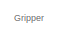
[diagram: root canvas - part 1/8, top right region]
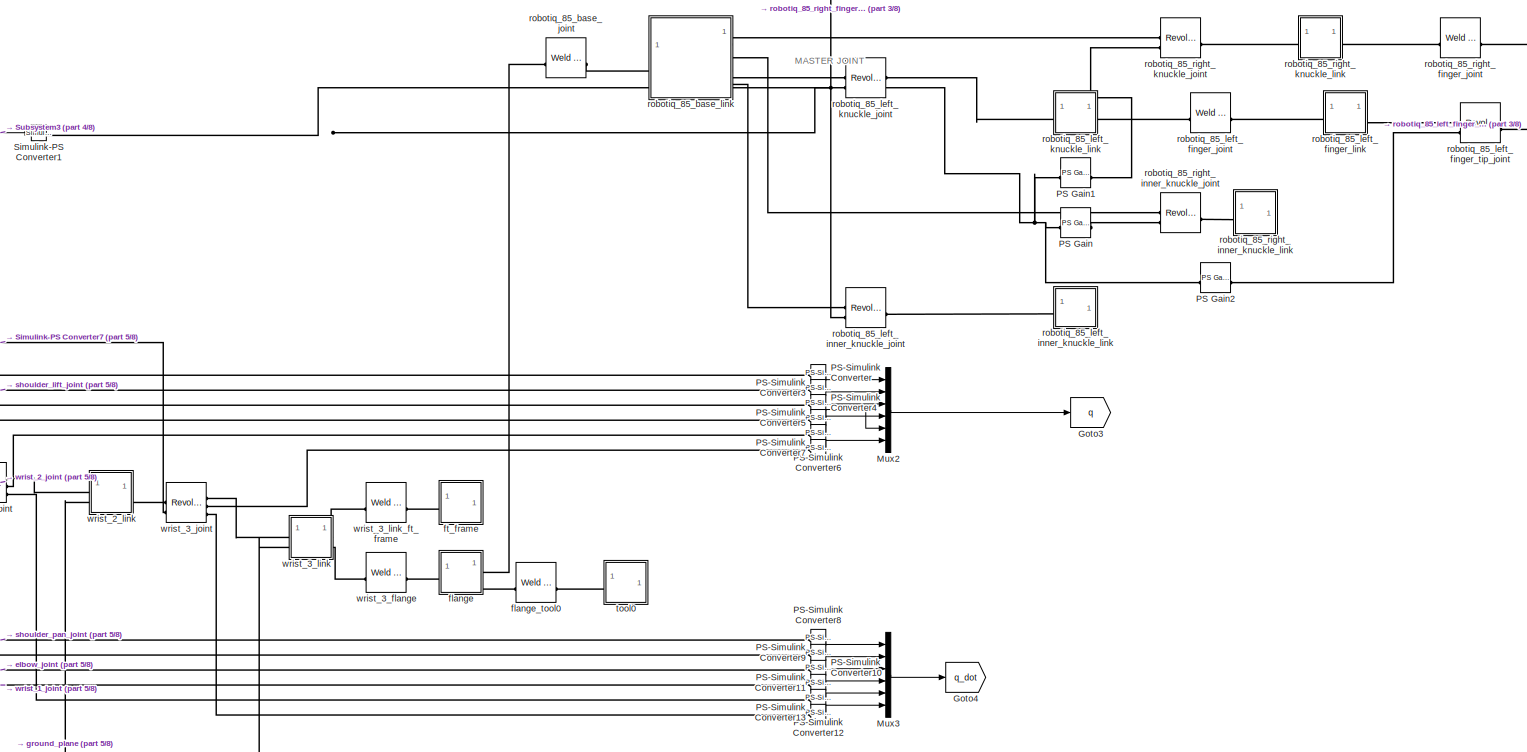
[diagram: root canvas - part 2/8, top right region]
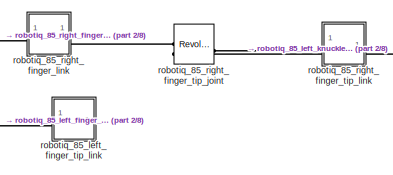
[diagram: root canvas - part 3/8, top right region]
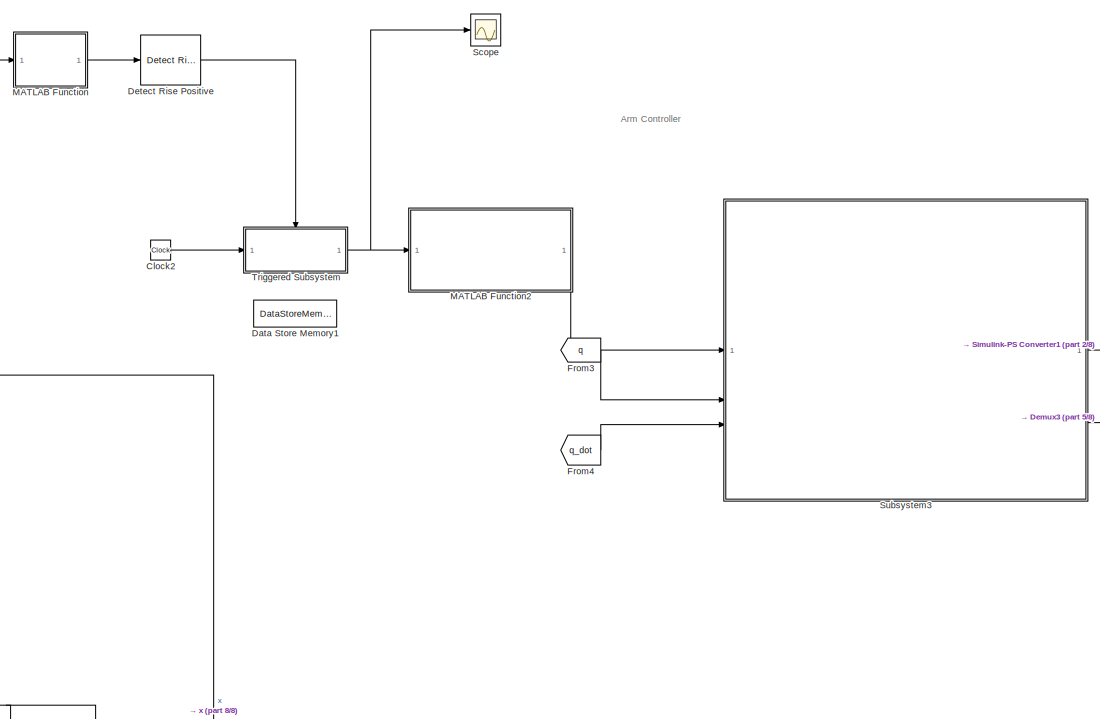
[diagram: root canvas - part 4/8, top center region]
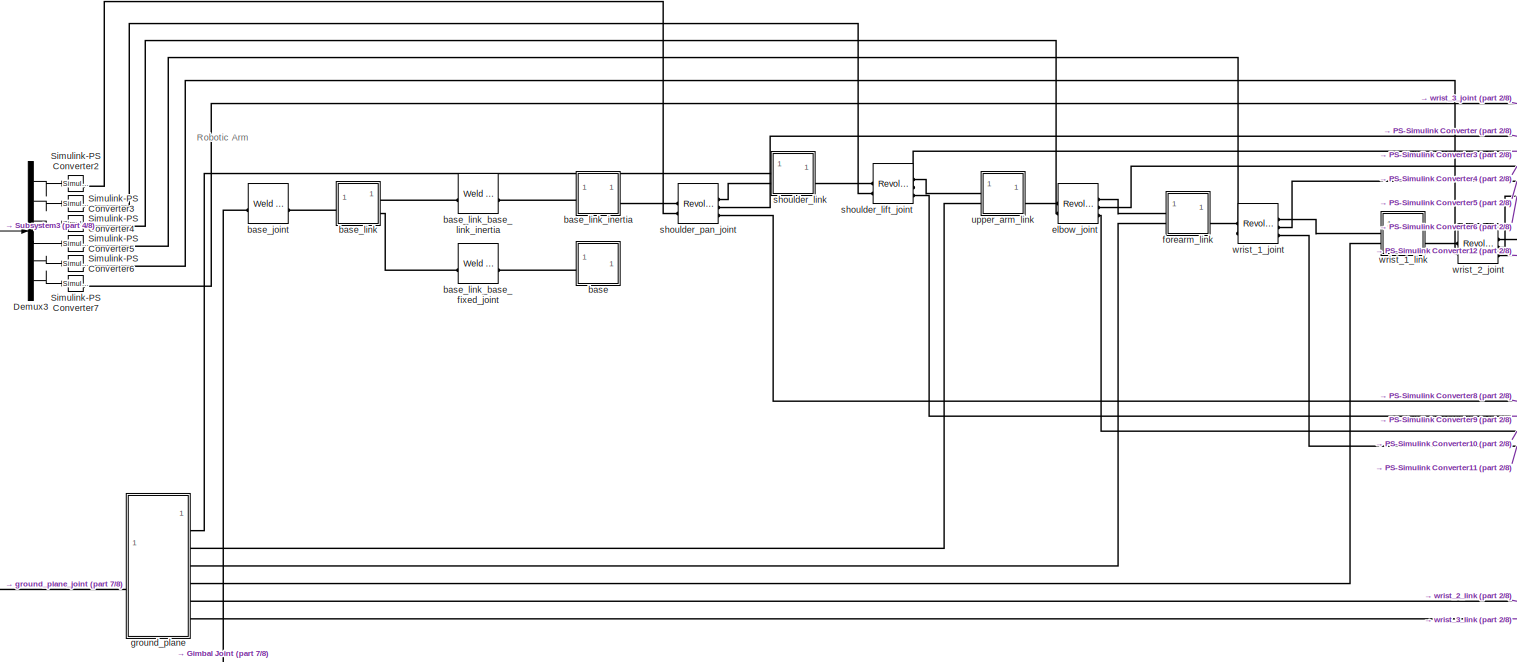
[diagram: root canvas - part 5/8, central region]
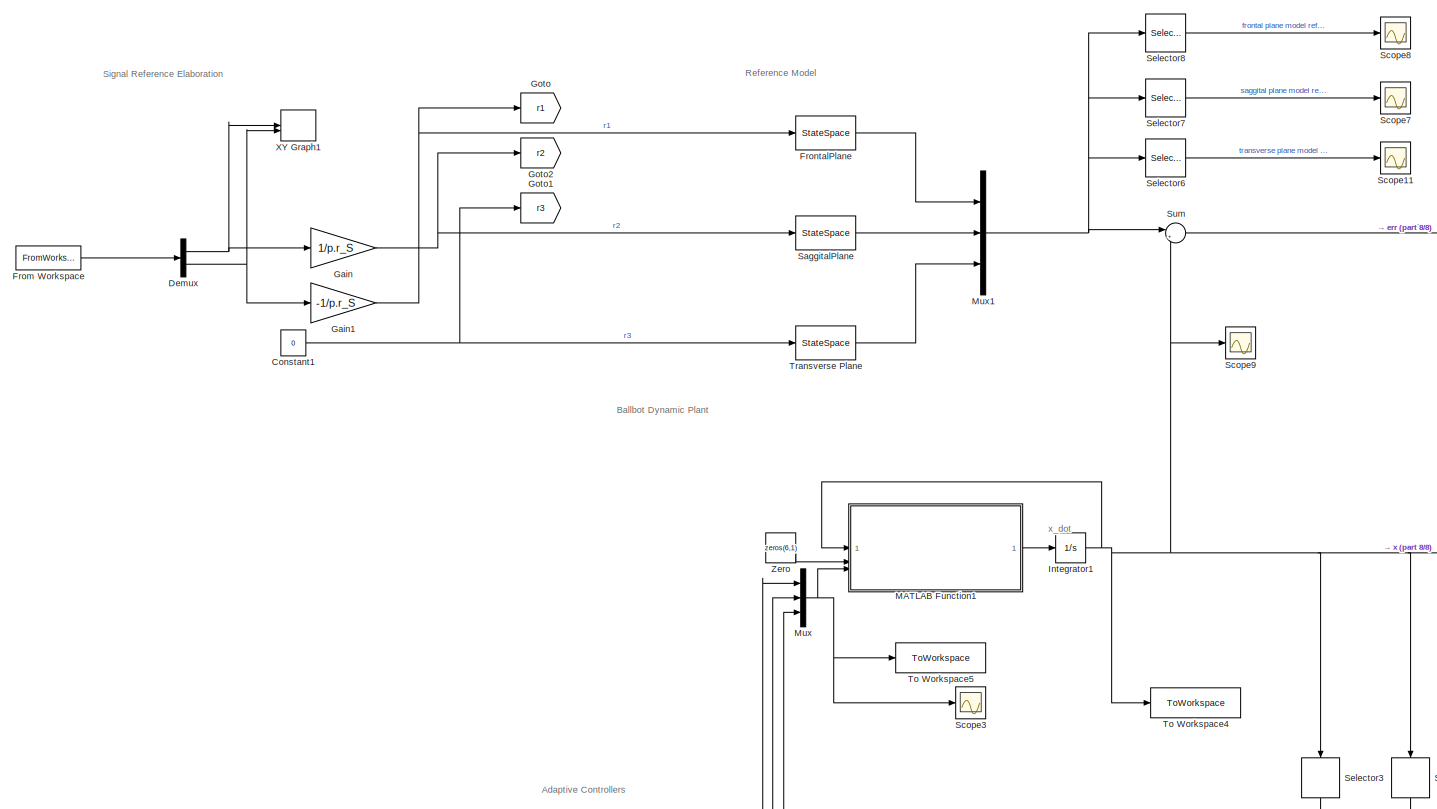
[diagram: root canvas - part 6/8, middle left region]
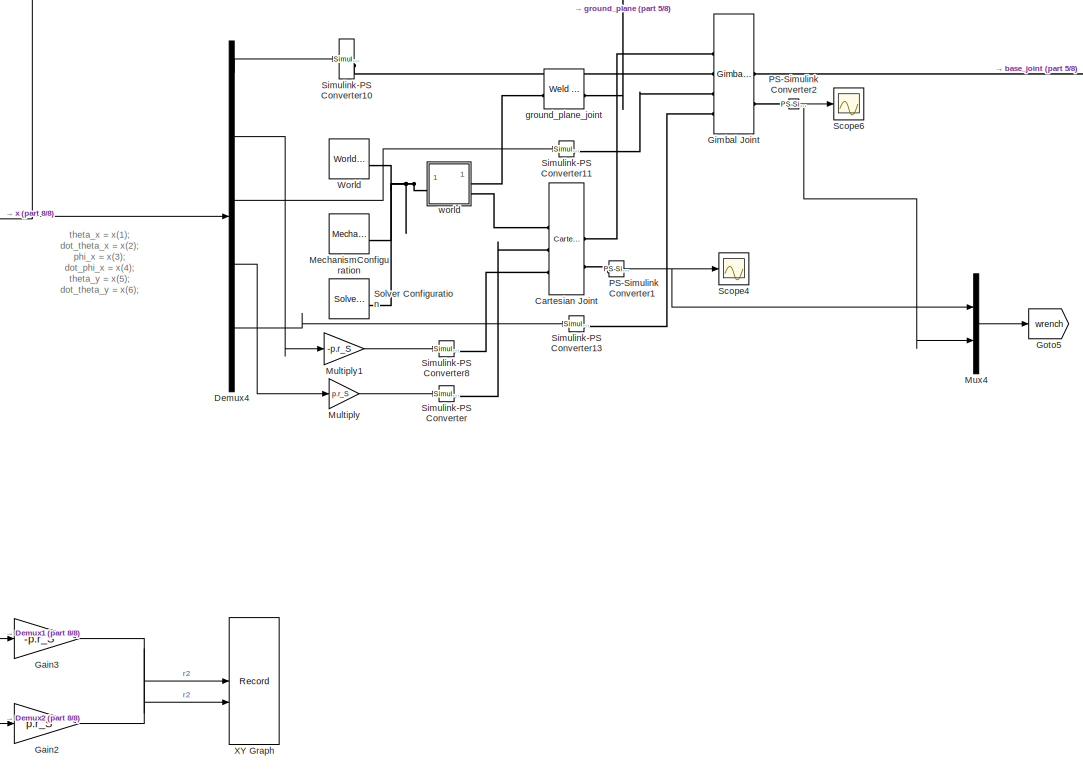
[diagram: root canvas - part 7/8, bottom center region]
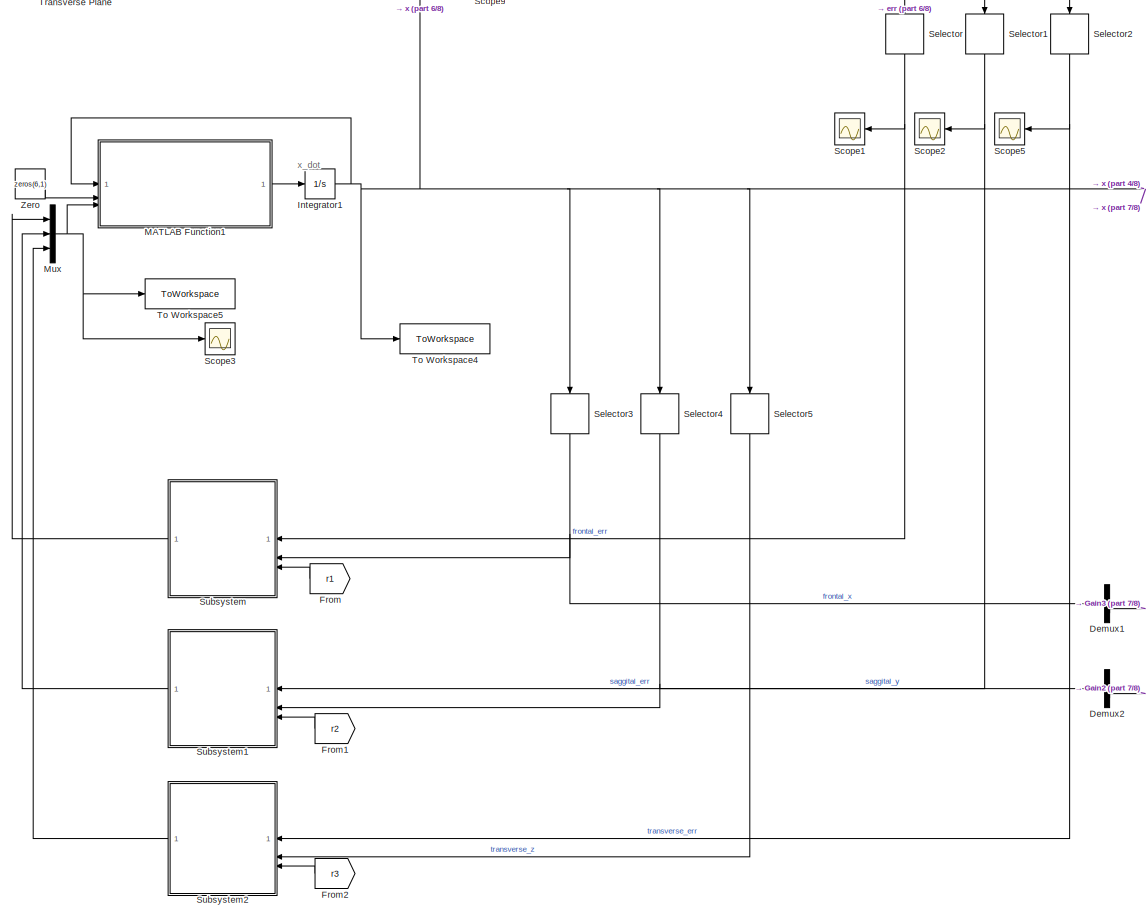
[diagram: root canvas - part 8/8, bottom left region]
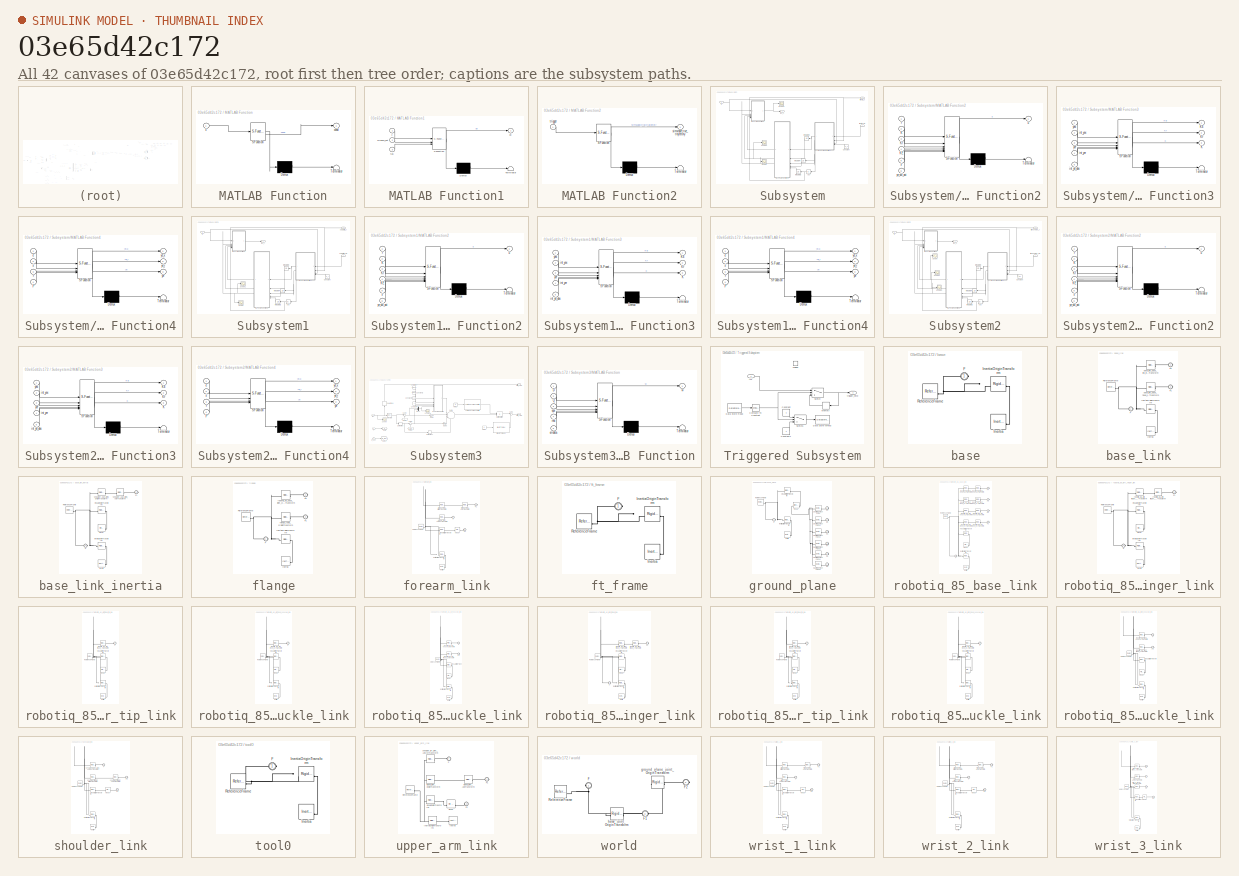
[diagram: thumbnail index - all 42 canvases of the model, root first then tree order]
MODEL slx_03e65d42c172
KIND model
CONFIG AbsTol = auto
CONFIG EnableMultiTasking = off
CONFIG FixedStep = auto
CONFIG MaxStep = auto
CONFIG MinStep = auto
CONFIG RelTol = 1e-3
CONFIG SampleTimeConstraint = Unconstrained
CONFIG SolverName = VariableStepAuto
CONFIG StartTime = 0.0
CONFIG StopTime = 50
BLOCK [Reference] Cartesian Joint  REF=sm_lib/Joints/Cartesian
Joint
  Commented = on
  SourceBlock = sm_lib/Joints/Cartesian\nJoint
  SourceType = Cartesian\nJoint
BLOCK [Clock] Clock2
  Commented = on
BLOCK [Constant] Constant1
  Value = 0
BLOCK [DataStoreMemory] Data Store Memory1
  DataStoreName = play_enbled
  ShowAdditionalParam = off
  WriteAfterWriteMsg = warning
BLOCK [Demux] Demux
  Outputs = 2
BLOCK [Demux] Demux1
BLOCK [Demux] Demux2
BLOCK [Demux] Demux3
  Commented = on
  Outputs = 6
BLOCK [Demux] Demux4
  Commented = on
  Outputs = 10
BLOCK [Reference] Detect Rise Positive  REF=simulink/Logic and Bit
Operations/Detect Rise
Positive
  Commented = on
  SourceBlock = simulink/Logic and Bit\nOperations/Detect Rise\nPositive
  SourceType = Detect Rise Positive
BLOCK [From] From
  GotoTag = r1
  NameLocation = top
BLOCK [FromWorkspace] From Workspace
  OutputAfterFinalValue = Holding final value
  VariableName = waypoints_ts
BLOCK [From] From1
  GotoTag = r2
  NameLocation = top
BLOCK [From] From2
  GotoTag = r3
  NameLocation = top
BLOCK [From] From3
  Commented = on
  GotoTag = q
BLOCK [From] From4
  Commented = on
  GotoTag = q_dot
BLOCK [StateSpace] FrontalPlane
  A = Am_x
  B = Bm_x
  C = Cm_x
  D = Dm_x
  InitialCondition = x0(1:4)
BLOCK [Gain] Gain
  Gain = 1/p.r_S
BLOCK [Gain] Gain1
  Gain = -1/p.r_S
BLOCK [Gain] Gain2
  Gain = p.r_S
  Multiplication = Matrix(K*u)
BLOCK [Gain] Gain3
  Gain = -p.r_S
  Multiplication = Matrix(K*u)
BLOCK [Reference] Gimbal Joint  REF=sm_lib/Joints/Gimbal Joint
  Commented = on
  SourceBlock = sm_lib/Joints/Gimbal Joint
  SourceType = Gimbal Joint
BLOCK [Goto] Goto
  GotoTag = r1
BLOCK [Goto] Goto1
  GotoTag = r3
BLOCK [Goto] Goto2
  GotoTag = r2
BLOCK [Goto] Goto3
  Commented = on
  GotoTag = q
BLOCK [Goto] Goto4
  Commented = on
  GotoTag = q_dot
BLOCK [Goto] Goto5
  Commented = on
  GotoTag = wrench
BLOCK [Integrator] Integrator1
  InitialCondition = x0
BLOCK [SubSystem] MATLAB Function
  Commented = on
  ErrorFcn = Stateflow.Translate.translate
  PermitHierarchicalResolution = ExplicitOnly
  SFBlockType = MATLAB Function
  TreatAsAtomicUnit = on
BLOCK [Demux] MATLAB Function/ Demux 
  Outputs = 1
BLOCK [S-Function] MATLAB Function/ SFunction 
  EnableBusSupport = off
  FunctionName = sf_sfun
  Parameters = p,waypoints
  PortCounts = [1 2]
  SFcnIsStateOwnerBlock = off
  SFunctionDeploymentMode = off
  Tag = Stateflow S-Function 12
BLOCK [Terminator] MATLAB Function/ Terminator 
BLOCK [Outport] MATLAB Function/cond
BLOCK [Inport] MATLAB Function/x
BLOCK [SubSystem] MATLAB Function1
  ErrorFcn = Stateflow.Translate.translate
  PermitHierarchicalResolution = ExplicitOnly
  SFBlockType = MATLAB Function
  TreatAsAtomicUnit = on
BLOCK [Demux] MATLAB Function1/ Demux 
  Outputs = 1
BLOCK [S-Function] MATLAB Function1/ SFunction 
  EnableBusSupport = off
  FunctionName = sf_sfun
  Parameters = p
  PortCounts = [3 2]
  SFcnIsStateOwnerBlock = off
  SFunctionDeploymentMode = off
  Tag = Stateflow S-Function 1
BLOCK [Terminator] MATLAB Function1/ Terminator 
BLOCK [Outport] MATLAB Function1/dx
BLOCK [Inport] MATLAB Function1/tau
  Port = 3
BLOCK [Inport] MATLAB Function1/wrench_ext
  Port = 2
BLOCK [Inport] MATLAB Function1/x
BLOCK [SubSystem] MATLAB Function2
  Commented = on
  ErrorFcn = Stateflow.Translate.translate
  PermitHierarchicalResolution = ExplicitOnly
  SFBlockType = MATLAB Function
  TreatAsAtomicUnit = on
BLOCK [Demux] MATLAB Function2/ Demux 
  Outputs = 1
BLOCK [S-Function] MATLAB Function2/ SFunction 
  EnableBusSupport = off
  FunctionName = sf_sfun
  Parameters = positions_final
  PortCounts = [1 2]
  SFcnIsStateOwnerBlock = off
  SFunctionDeploymentMode = off
  Tag = Stateflow S-Function 13
BLOCK [Terminator] MATLAB Function2/ Terminator 
BLOCK [Outport] MATLAB Function2/simscape_true_trajectory
BLOCK [Inport] MATLAB Function2/trigger
BLOCK [Reference] MechanismConfiguration  REF=sm_lib/Utilities/Mechanism
Configuration
  Commented = on
  SourceBlock = sm_lib/Utilities/Mechanism\nConfiguration
  SourceType = Mechanism\nConfiguration
BLOCK [Gain] Multiply
  Commented = on
  Gain = p.r_S
BLOCK [Gain] Multiply1
  Commented = on
  Gain = -p.r_S
BLOCK [Mux] Mux
  DisplayOption = bar
  Inputs = 3
BLOCK [Mux] Mux1
  DisplayOption = bar
  Inputs = 3
BLOCK [Mux] Mux2
  Commented = on
  DisplayOption = bar
  Inputs = 6
BLOCK [Mux] Mux3
  Commented = on
  DisplayOption = bar
  Inputs = 6
BLOCK [Mux] Mux4
  Commented = on
  DisplayOption = bar
  Inputs = 2
BLOCK [Reference] PS Gain  REF=fl_lib/Physical Signals/Functions/PS Gain
  Commented = on
  SourceBlock = fl_lib/Physical Signals/Functions/PS Gain
  SourceType = PS Gain
BLOCK [Reference] PS Gain1  REF=fl_lib/Physical Signals/Functions/PS Gain
  Commented = on
  SourceBlock = fl_lib/Physical Signals/Functions/PS Gain
  SourceType = PS Gain
BLOCK [Reference] PS Gain2  REF=fl_lib/Physical Signals/Functions/PS Gain
  Commented = on
  SourceBlock = fl_lib/Physical Signals/Functions/PS Gain
  SourceType = PS Gain
BLOCK [Reference] PS-Simulink Converter  REF=nesl_utility/PS-Simulink
Converter
  Commented = on
  SourceBlock = nesl_utility/PS-Simulink\nConverter
  SourceType = PS-Simulink\nConverter
BLOCK [Reference] PS-Simulink Converter1  REF=nesl_utility/PS-Simulink
Converter
  Commented = on
  SourceBlock = nesl_utility/PS-Simulink\nConverter
  SourceType = PS-Simulink\nConverter
BLOCK [Reference] PS-Simulink Converter10  REF=nesl_utility/PS-Simulink
Converter
  Commented = on
  SourceBlock = nesl_utility/PS-Simulink\nConverter
  SourceType = PS-Simulink\nConverter
BLOCK [Reference] PS-Simulink Converter11  REF=nesl_utility/PS-Simulink
Converter
  Commented = on
  SourceBlock = nesl_utility/PS-Simulink\nConverter
  SourceType = PS-Simulink\nConverter
BLOCK [Reference] PS-Simulink Converter12  REF=nesl_utility/PS-Simulink
Converter
  Commented = on
  SourceBlock = nesl_utility/PS-Simulink\nConverter
  SourceType = PS-Simulink\nConverter
BLOCK [Reference] PS-Simulink Converter13  REF=nesl_utility/PS-Simulink
Converter
  Commented = on
  SourceBlock = nesl_utility/PS-Simulink\nConverter
  SourceType = PS-Simulink\nConverter
BLOCK [Reference] PS-Simulink Converter2  REF=nesl_utility/PS-Simulink
Converter
  Commented = on
  SourceBlock = nesl_utility/PS-Simulink\nConverter
  SourceType = PS-Simulink\nConverter
BLOCK [Reference] PS-Simulink Converter3  REF=nesl_utility/PS-Simulink
Converter
  Commented = on
  SourceBlock = nesl_utility/PS-Simulink\nConverter
  SourceType = PS-Simulink\nConverter
BLOCK [Reference] PS-Simulink Converter4  REF=nesl_utility/PS-Simulink
Converter
  Commented = on
  SourceBlock = nesl_utility/PS-Simulink\nConverter
  SourceType = PS-Simulink\nConverter
BLOCK [Reference] PS-Simulink Converter5  REF=nesl_utility/PS-Simulink
Converter
  Commented = on
  SourceBlock = nesl_utility/PS-Simulink\nConverter
  SourceType = PS-Simulink\nConverter
BLOCK [Reference] PS-Simulink Converter6  REF=nesl_utility/PS-Simulink
Converter
  Commented = on
  SourceBlock = nesl_utility/PS-Simulink\nConverter
  SourceType = PS-Simulink\nConverter
BLOCK [Reference] PS-Simulink Converter7  REF=nesl_utility/PS-Simulink
Converter
  Commented = on
  SourceBlock = nesl_utility/PS-Simulink\nConverter
  SourceType = PS-Simulink\nConverter
BLOCK [Reference] PS-Simulink Converter8  REF=nesl_utility/PS-Simulink
Converter
  Commented = on
  SourceBlock = nesl_utility/PS-Simulink\nConverter
  SourceType = PS-Simulink\nConverter
BLOCK [Reference] PS-Simulink Converter9  REF=nesl_utility/PS-Simulink
Converter
  Commented = on
  SourceBlock = nesl_utility/PS-Simulink\nConverter
  SourceType = PS-Simulink\nConverter
BLOCK [StateSpace] SaggitalPlane
  A = Am_x
  B = Bm_x
  C = Cm_x
  D = Dm_x
  InitialCondition = x0(5:8)
BLOCK [Scope] Scope
  ActiveDisplayYMaximum = 34.115231288147847
  ActiveDisplayYMinimum = -3.7905812542386488
  Commented = on
  DataLoggingDecimation = 1
  DataLoggingLimitDataPoints = on
  DataLoggingSaveFormat = Array
  DataLoggingVariableName = ScopeData17
  Floating = off
  GraphicalSettings = {"Style":{"BackgroundColor":[0.12941176470588237,0.12941176470588237,0.12941176470588237],"AxesColor":[0.07058823529411765,0.07058823529411765,0.07058823529411765],"LabelsColor":[0.8509803921568627,0.8509803921568627,0.8509803921568627],"PreserveColors":false,"Visible":[true],"LineStyle":["-"],"LineWidth":[1.5],"BarWidth":[0.9],"LineColor":["auto"],"LineFaceAlpha":[1],"LineEdgeAlpha":[1],"Marker":...<+1921ch>
  MultipleDisplayCache = [{"MaxYLimMag":34.115231288147847,"MaxYLimReal":34.115231288147847,"MinYLimMag":0,"MinYLimReal":-3.7905812542386488,"PlotAsMagnitudePhase":false,"ShowGrid":true,"ShowLegend":false,"Title":"%<SignalLabel>","YLabel":""}]
  NumInputPorts = 1
  ScopeFrameLocation = window
  Visible = on
  WasSavedAsWebScope = on
  WindowPosition = [606.000000,313.000000,324.000000,239.000000,]
BLOCK [Scope] Scope1
  ActiveDisplayYMaximum = 0.025888272667154349
  ActiveDisplayYMinimum = -0.013556227523486841
  DataLoggingVariableName = ScopeData4
  Floating = off
  GraphicalSettings = {"AxesScalingProperties":{"AlignXAxis":"Center","AlignYAxis":"Center","AutoScaleXAxisLimits":false,"AxesScaling":"Manual","AxesScalingNumUpdates":10,"ExpandOnly":true,"ScaleAxesLimitsAtStop":false,"XAxisDataRange":100,"YAxisDataRange":80},"DisplayProperties":{"ColorOrder":["auto","auto","auto","auto","auto","auto","auto","auto","auto","auto","auto","auto","auto","auto","auto","auto","auto","auto",...<+2405ch>
  MultipleDisplayCache = [{"MaxYLimMag":7.1206823518985072,"MaxYLimReal":0.025888272667154349,"MinYLimMag":0,"MinYLimReal":-0.013556227523486841,"PlotAsMagnitudePhase":false,"ShowGrid":true,"ShowLegend":true,"Title":"%<SignalLabel>","YLabel":""}]
  NameLocation = left
  NumInputPorts = 1
  ScopeFrameLocation = window
  ShowLegend = on
  Visible = on
  WasSavedAsWebScope = on
  WindowPosition = [488.000000,222.000000,689.000000,420.000000,]
BLOCK [Scope] Scope11
  ActiveDisplayYMaximum = 1
  ActiveDisplayYMinimum = -1
  DataLoggingVariableName = ScopeData19
  Floating = off
  GraphicalSettings = {"Style":{"BackgroundColor":[0.12941176470588237,0.12941176470588237,0.12941176470588237],"AxesColor":[0.07058823529411765,0.07058823529411765,0.07058823529411765],"LabelsColor":[0.8509803921568627,0.8509803921568627,0.8509803921568627],"PreserveColors":false,"Visible":[true,true],"LineStyle":["-","-"],"LineWidth":[1.5,1.5],"BarWidth":[0.9,0.9],"LineColor":["auto","auto"],"LineFaceAlpha":[1,1],"Li...<+2146ch>
  MultipleDisplayCache = [{"MaxYLimMag":1,"MaxYLimReal":1,"MinYLimMag":0,"MinYLimReal":-1,"PlotAsMagnitudePhase":false,"ShowGrid":true,"ShowLegend":false,"Title":"%<SignalLabel>","YLabel":""}]
  NameLocation = right
  NumInputPorts = 1
  ScopeFrameLocation = window
  WasSavedAsWebScope = on
  WindowPosition = [488.000000,222.000000,560.000000,420.000000,]
BLOCK [Scope] Scope2
  ActiveDisplayYMaximum = 0.022177672040008672
  ActiveDisplayYMinimum = -0.027292581217584932
  DataLoggingVariableName = ScopeData5
  Floating = off
  GraphicalSettings = {"AxesScalingProperties":{"AlignXAxis":"Center","AlignYAxis":"Center","AutoScaleXAxisLimits":false,"AxesScaling":"Manual","AxesScalingNumUpdates":10,"ExpandOnly":true,"ScaleAxesLimitsAtStop":false,"XAxisDataRange":100,"YAxisDataRange":80},"DisplayProperties":{"ColorOrder":["auto","auto","auto","auto","auto","auto","auto","auto","auto","auto","auto","auto","auto","auto","auto","auto","auto","auto",...<+2407ch>
  MultipleDisplayCache = [{"MaxYLimMag":8.807161570840325,"MaxYLimReal":0.022177672040008672,"MinYLimMag":0,"MinYLimReal":-0.027292581217584932,"PlotAsMagnitudePhase":false,"ShowGrid":true,"ShowLegend":true,"Title":"%<SignalLabel>","YLabel":""}]
  NameLocation = left
  NumInputPorts = 1
  ScopeFrameLocation = window
  ShowLegend = on
  Visible = on
  WasSavedAsWebScope = on
  WindowPosition = [488.000000,222.000000,560.000000,420.000000,]
BLOCK [Scope] Scope3
  ActiveDisplayYMaximum = 260.53177
  ActiveDisplayYMinimum = -51.22616
  DataLoggingVariableName = ScopeData9
  Floating = off
  GraphicalSettings = {"GraphicalSettings":{"LegacySettings":true,"Style":{"AxesScalingProperties":{"ScaleAxesLimitsAtStop":false},"Style":{"AxesColor":"[0 0 0]","ChannelNames":[""],"ColorOrder":"[1 0.909803921568627 0.392156862745098;0.149019607843137 0.549019607843137 0.866666666666667;0.96078431372549 0.466666666666667 0.16078431372549;0.286274509803922 0.858823529411765 0.250980392156863;0.752941176470588 0.3607843...<+575ch>
  MultipleDisplayCache = [{"MaxYLimMag":260.53177,"MaxYLimReal":260.53177,"MinYLimMag":0,"MinYLimReal":-51.22616,"PlotAsMagnitudePhase":false,"ShowGrid":true,"ShowLegend":false,"Title":"%<SignalLabel>","YLabel":""}]
  NumInputPorts = 1
  WasSavedAsWebScope = on
BLOCK [Scope] Scope4
  ActiveDisplayYMaximum = 246.83615489840929
  ActiveDisplayYMinimum = -216.98568822569763
  Commented = on
  Floating = off
  GraphicalSettings = {"AxesScalingProperties":{"AlignXAxis":"Center","AlignYAxis":"Center","AutoScaleXAxisLimits":false,"AxesScaling":"Manual","AxesScalingNumUpdates":10,"ExpandOnly":true,"ScaleAxesLimitsAtStop":false,"XAxisDataRange":100,"YAxisDataRange":80},"DisplayProperties":{"ColorOrder":["auto","auto","auto","auto","auto","auto","auto","auto","auto","auto","auto","auto","auto","auto","auto","auto","auto","auto",...<+2338ch>
  MultipleDisplayCache = [{"MaxYLimMag":231.13030647194336,"MaxYLimReal":246.83615489840929,"MinYLimMag":0,"MinYLimReal":-216.98568822569763,"PlotAsMagnitudePhase":false,"ShowGrid":true,"ShowLegend":true,"Title":"%<SignalLabel>","YLabel":""}]
  NumInputPorts = 1
  ScopeFrameLocation = window
  ShowLegend = on
  WasSavedAsWebScope = on
  WindowPosition = [1299.000000,271.000000,560.000000,420.000000,]
BLOCK [Scope] Scope5
  ActiveDisplayYMaximum = 1
  ActiveDisplayYMinimum = -1
  DataLoggingVariableName = ScopeData10
  Floating = off
  GraphicalSettings = {"Style":{"BackgroundColor":[0.12941176470588237,0.12941176470588237,0.12941176470588237],"AxesColor":[0.07058823529411765,0.07058823529411765,0.07058823529411765],"LabelsColor":[0.8509803921568627,0.8509803921568627,0.8509803921568627],"PreserveColors":false,"Visible":[true,true],"LineStyle":["-","-"],"LineWidth":[1.5,1.5],"BarWidth":[0.9,0.9],"LineColor":["auto","auto"],"LineFaceAlpha":[1,1],"Li...<+2048ch>
  MultipleDisplayCache = [{"MaxYLimMag":1,"MaxYLimReal":1,"MinYLimMag":0,"MinYLimReal":-1,"PlotAsMagnitudePhase":false,"ShowGrid":true,"ShowLegend":true,"Title":"%<SignalLabel>","YLabel":""}]
  NameLocation = left
  NumInputPorts = 1
  ScopeFrameLocation = window
  ShowLegend = on
  Visible = on
  WasSavedAsWebScope = on
  WindowPosition = [488.000000,222.000000,560.000000,420.000000,]
BLOCK [Scope] Scope6
  ActiveDisplayYMaximum = 84.096812185900717
  ActiveDisplayYMinimum = -54.450907506249663
  Commented = on
  DataLoggingVariableName = ScopeData21
  Floating = off
  GraphicalSettings = {"AxesScalingProperties":{"AlignXAxis":"Center","AlignYAxis":"Center","AutoScaleXAxisLimits":false,"AxesScaling":"Manual","AxesScalingNumUpdates":10,"ExpandOnly":true,"ScaleAxesLimitsAtStop":false,"XAxisDataRange":100,"YAxisDataRange":80},"DisplayProperties":{"ColorOrder":["auto","auto","auto","auto","auto","auto","auto","auto","auto","auto","auto","auto","auto","auto","auto","auto","auto","auto",...<+2340ch>
  MultipleDisplayCache = [{"MaxYLimMag":80.240506872841252,"MaxYLimReal":84.096812185900717,"MinYLimMag":0,"MinYLimReal":-54.450907506249663,"PlotAsMagnitudePhase":false,"ShowGrid":true,"ShowLegend":false,"Title":"%<SignalLabel>","YLabel":""}]
  NumInputPorts = 1
  ScopeFrameLocation = window
  WasSavedAsWebScope = on
  WindowPosition = [1243.000000,708.000000,560.000000,435.000000,]
BLOCK [Scope] Scope7
  ActiveDisplayYMaximum = 7.8498810096087537
  ActiveDisplayYMinimum = -1.5806005759176105
  DataLoggingVariableName = ScopeData13
  Floating = off
  GraphicalSettings = {"Style":{"BackgroundColor":[0.12941176470588237,0.12941176470588237,0.12941176470588237],"AxesColor":[0.07058823529411765,0.07058823529411765,0.07058823529411765],"LabelsColor":[0.8509803921568627,0.8509803921568627,0.8509803921568627],"PreserveColors":false,"Visible":[true,true,true,true],"LineStyle":["-","-","-","-"],"LineWidth":[1.5,1.5,1.5,1.5],"BarWidth":[0.9,0.9,0.9,0.9],"LineColor":["auto"...<+2542ch>
  MultipleDisplayCache = [{"MaxYLimMag":7.8498810096087537,"MaxYLimReal":7.8498810096087537,"MinYLimMag":0,"MinYLimReal":-1.5806005759176105,"PlotAsMagnitudePhase":false,"ShowGrid":true,"ShowLegend":false,"Title":"%<SignalLabel>","YLabel":""}]
  NameLocation = right
  NumInputPorts = 1
  ScopeFrameLocation = window
  Visible = on
  WasSavedAsWebScope = on
  WindowPosition = [488.000000,222.000000,560.000000,420.000000,]
BLOCK [Scope] Scope8
  ActiveDisplayYMaximum = 1.6390471773521818
  ActiveDisplayYMinimum = -2.5845534206269796
  DataLoggingVariableName = ScopeData14
  Floating = off
  GraphicalSettings = {"Style":{"BackgroundColor":[0.12941176470588237,0.12941176470588237,0.12941176470588237],"AxesColor":[0.07058823529411765,0.07058823529411765,0.07058823529411765],"LabelsColor":[0.8509803921568627,0.8509803921568627,0.8509803921568627],"PreserveColors":false,"Visible":[true,true,true,true],"LineStyle":["-","-","-","-"],"LineWidth":[1.5,1.5,1.5,1.5],"BarWidth":[0.9,0.9,0.9,0.9],"LineColor":["auto"...<+2528ch>
  MultipleDisplayCache = [{"MaxYLimMag":2.5845534206269796,"MaxYLimReal":1.6390471773521818,"MinYLimMag":0,"MinYLimReal":-2.5845534206269796,"PlotAsMagnitudePhase":false,"ShowGrid":true,"ShowLegend":true,"Title":"%<SignalLabel>","YLabel":""}]
  NameLocation = right
  NumInputPorts = 1
  ScopeFrameLocation = window
  ShowLegend = on
  Visible = on
  WasSavedAsWebScope = on
  WindowPosition = [488.000000,222.000000,560.000000,420.000000,]
BLOCK [Scope] Scope9
  ActiveDisplayYMaximum = 5.159444994552894
  ActiveDisplayYMinimum = -13.2648482849
  DataLoggingVariableName = ScopeData11
  Floating = off
  GraphicalSettings = {"Style":{"BackgroundColor":[0.12941176470588237,0.12941176470588237,0.12941176470588237],"AxesColor":[0.07058823529411765,0.07058823529411765,0.07058823529411765],"LabelsColor":[0.8509803921568627,0.8509803921568627,0.8509803921568627],"PreserveColors":false,"Visible":[true,true,true,true],"LineStyle":["-","-","-","-"],"LineWidth":[1.5,1.5,1.5,1.5],"BarWidth":[0.9,0.9,0.9,0.9],"LineColor":["auto"...<+2506ch>
  MultipleDisplayCache = [{"MaxYLimMag":13.2648482849,"MaxYLimReal":5.159444994552894,"MinYLimMag":0,"MinYLimReal":-13.2648482849,"PlotAsMagnitudePhase":false,"ShowGrid":true,"ShowLegend":true,"Title":"%<SignalLabel>","YLabel":""}]
  NameLocation = right
  NumInputPorts = 1
  ScopeFrameLocation = window
  ShowLegend = on
  WasSavedAsWebScope = on
  WindowPosition = [488.000000,222.000000,560.000000,420.000000,]
BLOCK [Selector] Selector
  IndexOptions = Index vector (dialog)
  Indices = [1 2 3 4]
  InputPortWidth = 10
  NameLocation = left
  OutputSizes = 1
BLOCK [Selector] Selector1
  IndexOptions = Index vector (dialog)
  Indices = [5 6 7 8]
  InputPortWidth = 10
  NameLocation = left
  OutputSizes = 1
BLOCK [Selector] Selector2
  IndexOptions = Index vector (dialog)
  Indices = [9 10]
  InputPortWidth = 10
  NameLocation = left
  OutputSizes = 1
BLOCK [Selector] Selector3
  IndexOptions = Index vector (dialog)
  Indices = [1 2 3 4]
  InputPortWidth = 10
  NameLocation = left
  OutputSizes = 1
BLOCK [Selector] Selector4
  IndexOptions = Index vector (dialog)
  Indices = [5 6 7 8]
  InputPortWidth = 10
  NameLocation = left
  OutputSizes = 1
BLOCK [Selector] Selector5
  IndexOptions = Index vector (dialog)
  Indices = [9 10]
  InputPortWidth = 10
  NameLocation = left
  OutputSizes = 1
BLOCK [Selector] Selector6
  IndexOptions = Index vector (dialog)
  Indices = [9 10]
  InputPortWidth = 10
  OutputSizes = 1
BLOCK [Selector] Selector7
  IndexOptions = Index vector (dialog)
  Indices = [5 6 7 8]
  InputPortWidth = 10
  OutputSizes = 1
BLOCK [Selector] Selector8
  IndexOptions = Index vector (dialog)
  Indices = [1 2 3 4]
  InputPortWidth = 10
  OutputSizes = 1
BLOCK [Reference] Simulink-PS Converter  REF=nesl_utility/Simulink-PS
Converter
  Commented = on
  SourceBlock = nesl_utility/Simulink-PS\nConverter
  SourceType = Simulink-PS\nConverter
BLOCK [Reference] Simulink-PS Converter1  REF=nesl_utility/Simulink-PS
Converter
  Commented = on
  SourceBlock = nesl_utility/Simulink-PS\nConverter
  SourceType = Simulink-PS\nConverter
BLOCK [Reference] Simulink-PS Converter10  REF=nesl_utility/Simulink-PS
Converter
  Commented = on
  SourceBlock = nesl_utility/Simulink-PS\nConverter
  SourceType = Simulink-PS\nConverter
BLOCK [Reference] Simulink-PS Converter11  REF=nesl_utility/Simulink-PS
Converter
  Commented = on
  SourceBlock = nesl_utility/Simulink-PS\nConverter
  SourceType = Simulink-PS\nConverter
BLOCK [Reference] Simulink-PS Converter13  REF=nesl_utility/Simulink-PS
Converter
  Commented = on
  SourceBlock = nesl_utility/Simulink-PS\nConverter
  SourceType = Simulink-PS\nConverter
BLOCK [Reference] Simulink-PS Converter2  REF=nesl_utility/Simulink-PS
Converter
  Commented = on
  SourceBlock = nesl_utility/Simulink-PS\nConverter
  SourceType = Simulink-PS\nConverter
BLOCK [Reference] Simulink-PS Converter3  REF=nesl_utility/Simulink-PS
Converter
  Commented = on
  SourceBlock = nesl_utility/Simulink-PS\nConverter
  SourceType = Simulink-PS\nConverter
BLOCK [Reference] Simulink-PS Converter4  REF=nesl_utility/Simulink-PS
Converter
  Commented = on
  SourceBlock = nesl_utility/Simulink-PS\nConverter
  SourceType = Simulink-PS\nConverter
BLOCK [Reference] Simulink-PS Converter5  REF=nesl_utility/Simulink-PS
Converter
  Commented = on
  SourceBlock = nesl_utility/Simulink-PS\nConverter
  SourceType = Simulink-PS\nConverter
BLOCK [Reference] Simulink-PS Converter6  REF=nesl_utility/Simulink-PS
Converter
  Commented = on
  SourceBlock = nesl_utility/Simulink-PS\nConverter
  SourceType = Simulink-PS\nConverter
BLOCK [Reference] Simulink-PS Converter7  REF=nesl_utility/Simulink-PS
Converter
  Commented = on
  SourceBlock = nesl_utility/Simulink-PS\nConverter
  SourceType = Simulink-PS\nConverter
BLOCK [Reference] Simulink-PS Converter8  REF=nesl_utility/Simulink-PS
Converter
  Commented = on
  SourceBlock = nesl_utility/Simulink-PS\nConverter
  SourceType = Simulink-PS\nConverter
BLOCK [Reference] Solver Configuration  REF=nesl_utility/Solver
Configuration
  Commented = on
  SourceBlock = nesl_utility/Solver\nConfiguration
  SourceType = Solver\nConfiguration
BLOCK [SubSystem] Subsystem
  NameLocation = top
BLOCK [Abs] Subsystem/Abs
  NameLocation = top
  SaturateOnIntegerOverflow = off
BLOCK [Constant] Subsystem/Constant
  NameLocation = top
  Value = P_x
BLOCK [Integrator] Subsystem/Integrator2
  NameLocation = top
BLOCK [Integrator] Subsystem/Integrator3
  NameLocation = top
BLOCK [Integrator] Subsystem/Integrator4
  NameLocation = top
BLOCK [SubSystem] Subsystem/MATLAB Function2
  ErrorFcn = Stateflow.Translate.translate
  PermitHierarchicalResolution = ExplicitOnly
  SFBlockType = MATLAB Function
  TreatAsAtomicUnit = on
BLOCK [Demux] Subsystem/MATLAB Function2/ Demux 
  Outputs = 1
BLOCK [S-Function] Subsystem/MATLAB Function2/ SFunction 
  EnableBusSupport = off
  FunctionName = sf_sfun
  PortCounts = [6 2]
  SFcnIsStateOwnerBlock = off
  SFunctionDeploymentMode = off
  Tag = Stateflow S-Function 3
BLOCK [Terminator] Subsystem/MATLAB Function2/ Terminator 
BLOCK [Inport] Subsystem/MATLAB Function2/K
  Port = 2
BLOCK [Inport] Subsystem/MATLAB Function2/KE
  Port = 4
BLOCK [Inport] Subsystem/MATLAB Function2/Kr
  Port = 3
BLOCK [Inport] Subsystem/MATLAB Function2/r
BLOCK [Outport] Subsystem/MATLAB Function2/u
BLOCK [Inport] Subsystem/MATLAB Function2/x
  Port = 5
BLOCK [Inport] Subsystem/MATLAB Function2/ye_sw_act
  Port = 6
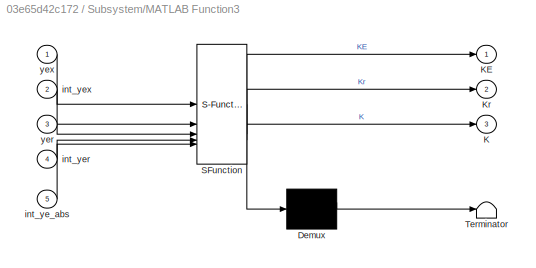
BLOCK [SubSystem] Subsystem/MATLAB Function3
  ErrorFcn = Stateflow.Translate.translate
  NameLocation = top
  PermitHierarchicalResolution = ExplicitOnly
  SFBlockType = MATLAB Function
  TreatAsAtomicUnit = on
BLOCK [Demux] Subsystem/MATLAB Function3/ Demux 
  Outputs = 1
BLOCK [S-Function] Subsystem/MATLAB Function3/ SFunction 
  EnableBusSupport = off
  FunctionName = sf_sfun
  Parameters = alpha,beta,gamma
  PortCounts = [5 4]
  SFcnIsStateOwnerBlock = off
  SFunctionDeploymentMode = off
  Tag = Stateflow S-Function 4
BLOCK [Terminator] Subsystem/MATLAB Function3/ Terminator 
BLOCK [Outport] Subsystem/MATLAB Function3/K
  Port = 3
BLOCK [Outport] Subsystem/MATLAB Function3/KE
BLOCK [Outport] Subsystem/MATLAB Function3/Kr
  Port = 2
BLOCK [Inport] Subsystem/MATLAB Function3/int_ye_abs
  Port = 5
BLOCK [Inport] Subsystem/MATLAB Function3/int_yer
  Port = 4
BLOCK [Inport] Subsystem/MATLAB Function3/int_yex
  Port = 2
BLOCK [Inport] Subsystem/MATLAB Function3/yer
  Port = 3
BLOCK [Inport] Subsystem/MATLAB Function3/yex
BLOCK [SubSystem] Subsystem/MATLAB Function4
  ErrorFcn = Stateflow.Translate.translate
  NameLocation = top
  PermitHierarchicalResolution = ExplicitOnly
  SFBlockType = MATLAB Function
  TreatAsAtomicUnit = on
BLOCK [Demux] Subsystem/MATLAB Function4/ Demux 
  Outputs = 1
BLOCK [S-Function] Subsystem/MATLAB Function4/ SFunction 
  EnableBusSupport = off
  FunctionName = sf_sfun
  Parameters = B_roll
  PortCounts = [4 4]
  SFcnIsStateOwnerBlock = off
  SFunctionDeploymentMode = off
  Tag = Stateflow S-Function 2
BLOCK [Terminator] Subsystem/MATLAB Function4/ Terminator 
BLOCK [Inport] Subsystem/MATLAB Function4/P
  Port = 4
BLOCK [Inport] Subsystem/MATLAB Function4/e
BLOCK [Inport] Subsystem/MATLAB Function4/r
  Port = 3
BLOCK [Inport] Subsystem/MATLAB Function4/x
  Port = 2
BLOCK [Outport] Subsystem/MATLAB Function4/ye
  Port = 3
BLOCK [Outport] Subsystem/MATLAB Function4/ye_r
  Port = 2
BLOCK [Outport] Subsystem/MATLAB Function4/ye_x
BLOCK [Scope] Subsystem/Scope
  ActiveDisplayYMaximum = 26.76337
  ActiveDisplayYMinimum = -8.53987
  DataLoggingVariableName = ScopeData6
  Floating = off
  GraphicalSettings = {"GraphicalSettings":{"LegacySettings":true,"Style":{"Style":{"AxesColor":"[0 0 0]","ChannelNames":[""],"ColorOrder":"[1 0.909803921568627 0.392156862745098;0.149019607843137 0.549019607843137 0.866666666666667;0.96078431372549 0.466666666666667 0.16078431372549;0.286274509803922 0.858823529411765 0.250980392156863;0.752941176470588 0.36078431372549 0.984313725490196;0.423529411764706 0.9568627450...<+477ch>
  MultipleDisplayCache = [{"MaxYLimMag":26.76337,"MaxYLimReal":26.76337,"MinYLimMag":0,"MinYLimReal":-8.53987,"PlotAsMagnitudePhase":false,"ShowGrid":true,"ShowLegend":false,"Title":"%<SignalLabel>","YLabel":""}]
  NumInputPorts = 1
  WasSavedAsWebScope = on
BLOCK [Scope] Subsystem/Scope1
  ActiveDisplayYMaximum = 5.77326
  ActiveDisplayYMinimum = -13.41076
  DataLoggingVariableName = ScopeData7
  Floating = off
  GraphicalSettings = {"GraphicalSettings":{"LegacySettings":true,"Style":{"Style":{"AxesColor":"[0 0 0]","ChannelNames":[""],"ColorOrder":"[1 0.909803921568627 0.392156862745098;0.149019607843137 0.549019607843137 0.866666666666667;0.96078431372549 0.466666666666667 0.16078431372549;0.286274509803922 0.858823529411765 0.250980392156863;0.752941176470588 0.36078431372549 0.984313725490196;0.423529411764706 0.9568627450...<+468ch>
  MultipleDisplayCache = [{"MaxYLimMag":13.41076,"MaxYLimReal":5.77326,"MinYLimMag":0,"MinYLimReal":-13.41076,"PlotAsMagnitudePhase":false,"ShowGrid":true,"ShowLegend":false,"Title":"%<SignalLabel>","YLabel":""}]
  NumInputPorts = 1
  WasSavedAsWebScope = on
BLOCK [Scope] Subsystem/Scope2
  ActiveDisplayYMaximum = 469.08302
  ActiveDisplayYMinimum = -89.43937
  DataLoggingVariableName = ScopeData8
  Floating = off
  GraphicalSettings = {"GraphicalSettings":{"LegacySettings":true,"Style":{"Style":{"AxesColor":"[0 0 0]","ChannelNames":[""],"ColorOrder":"[1 0.909803921568627 0.392156862745098;0.149019607843137 0.549019607843137 0.866666666666667;0.96078431372549 0.466666666666667 0.16078431372549;0.286274509803922 0.858823529411765 0.250980392156863;0.752941176470588 0.36078431372549 0.984313725490196;0.423529411764706 0.9568627450...<+432ch>  <repeated x4 — deduplicated; at blocks: Scope2, Scope1, Scope>
  MultipleDisplayCache = [{"MaxYLimMag":469.08302,"MaxYLimReal":469.08302,"MinYLimMag":0,"MinYLimReal":-89.43937,"PlotAsMagnitudePhase":false,"ShowGrid":true,"ShowLegend":false,"Title":"%<SignalLabel>","YLabel":""}]
  NumInputPorts = 1
  WasSavedAsWebScope = on
BLOCK [Inport] Subsystem/frontal_err
  NameLocation = top
BLOCK [Inport] Subsystem/frontal_x
  NameLocation = top
  Port = 2
BLOCK [Inport] Subsystem/r1
  Port = 3
BLOCK [Outport] Subsystem/tau_x
BLOCK [SubSystem] Subsystem1
  NameLocation = top
BLOCK [Abs] Subsystem1/Abs
  NameLocation = top
  SaturateOnIntegerOverflow = off
BLOCK [Constant] Subsystem1/Constant
  NameLocation = top
  Value = P_y
BLOCK [Integrator] Subsystem1/Integrator2
  NameLocation = top
BLOCK [Integrator] Subsystem1/Integrator3
  NameLocation = top
BLOCK [Integrator] Subsystem1/Integrator4
  NameLocation = top
BLOCK [SubSystem] Subsystem1/MATLAB Function2
  ErrorFcn = Stateflow.Translate.translate
  PermitHierarchicalResolution = ExplicitOnly
  SFBlockType = MATLAB Function
  TreatAsAtomicUnit = on
BLOCK [Demux] Subsystem1/MATLAB Function2/ Demux 
  Outputs = 1
BLOCK [S-Function] Subsystem1/MATLAB Function2/ SFunction 
  EnableBusSupport = off
  FunctionName = sf_sfun
  PortCounts = [6 2]
  SFcnIsStateOwnerBlock = off
  SFunctionDeploymentMode = off
  Tag = Stateflow S-Function 5
BLOCK [Terminator] Subsystem1/MATLAB Function2/ Terminator 
BLOCK [Inport] Subsystem1/MATLAB Function2/K
  Port = 2
BLOCK [Inport] Subsystem1/MATLAB Function2/KE
  Port = 4
BLOCK [Inport] Subsystem1/MATLAB Function2/Kr
  Port = 3
BLOCK [Inport] Subsystem1/MATLAB Function2/r
BLOCK [Outport] Subsystem1/MATLAB Function2/u
BLOCK [Inport] Subsystem1/MATLAB Function2/x
  Port = 5
BLOCK [Inport] Subsystem1/MATLAB Function2/ye_sw_act
  Port = 6
BLOCK [SubSystem] Subsystem1/MATLAB Function3
  ErrorFcn = Stateflow.Translate.translate
  NameLocation = top
  PermitHierarchicalResolution = ExplicitOnly
  SFBlockType = MATLAB Function
  TreatAsAtomicUnit = on
BLOCK [Demux] Subsystem1/MATLAB Function3/ Demux 
  Outputs = 1
BLOCK [S-Function] Subsystem1/MATLAB Function3/ SFunction 
  EnableBusSupport = off
  FunctionName = sf_sfun
  Parameters = alpha,beta,gamma
  PortCounts = [5 4]
  SFcnIsStateOwnerBlock = off
  SFunctionDeploymentMode = off
  Tag = Stateflow S-Function 6
BLOCK [Terminator] Subsystem1/MATLAB Function3/ Terminator 
BLOCK [Outport] Subsystem1/MATLAB Function3/K
  Port = 3
BLOCK [Outport] Subsystem1/MATLAB Function3/KE
BLOCK [Outport] Subsystem1/MATLAB Function3/Kr
  Port = 2
BLOCK [Inport] Subsystem1/MATLAB Function3/int_ye_abs
  Port = 5
BLOCK [Inport] Subsystem1/MATLAB Function3/int_yer
  Port = 4
BLOCK [Inport] Subsystem1/MATLAB Function3/int_yex
  Port = 2
BLOCK [Inport] Subsystem1/MATLAB Function3/yer
  Port = 3
BLOCK [Inport] Subsystem1/MATLAB Function3/yex
BLOCK [SubSystem] Subsystem1/MATLAB Function4
  ErrorFcn = Stateflow.Translate.translate
  NameLocation = top
  PermitHierarchicalResolution = ExplicitOnly
  SFBlockType = MATLAB Function
  TreatAsAtomicUnit = on
BLOCK [Demux] Subsystem1/MATLAB Function4/ Demux 
  Outputs = 1
BLOCK [S-Function] Subsystem1/MATLAB Function4/ SFunction 
  EnableBusSupport = off
  FunctionName = sf_sfun
  Parameters = B_pitch
  PortCounts = [4 4]
  SFcnIsStateOwnerBlock = off
  SFunctionDeploymentMode = off
  Tag = Stateflow S-Function 7
BLOCK [Terminator] Subsystem1/MATLAB Function4/ Terminator 
BLOCK [Inport] Subsystem1/MATLAB Function4/P
  Port = 4
BLOCK [Inport] Subsystem1/MATLAB Function4/e
BLOCK [Inport] Subsystem1/MATLAB Function4/r
  Port = 3
BLOCK [Inport] Subsystem1/MATLAB Function4/x
  Port = 2
BLOCK [Outport] Subsystem1/MATLAB Function4/ye
  Port = 3
BLOCK [Outport] Subsystem1/MATLAB Function4/ye_r
  Port = 2
BLOCK [Outport] Subsystem1/MATLAB Function4/ye_x
BLOCK [Scope] Subsystem1/Scope
  ActiveDisplayYMaximum = 11.42778
  ActiveDisplayYMinimum = -6.3612
  DataLoggingVariableName = ScopeData15
  Floating = off
  GraphicalSettings = {"GraphicalSettings":{"LegacySettings":true,"Style":{"AxesScalingProperties":{"ScaleAxesLimitsAtStop":false},"Style":{"AxesColor":"[0 0 0]","ChannelNames":[""],"ColorOrder":"[1 0.909803921568627 0.392156862745098;0.149019607843137 0.549019607843137 0.866666666666667;0.96078431372549 0.466666666666667 0.16078431372549;0.286274509803922 0.858823529411765 0.250980392156863;0.752941176470588 0.3607843...<+497ch>
  MultipleDisplayCache = [{"MaxYLimMag":11.42778,"MaxYLimReal":11.42778,"MinYLimMag":0,"MinYLimReal":-6.3612,"PlotAsMagnitudePhase":false,"ShowGrid":true,"ShowLegend":false,"Title":"%<SignalLabel>","YLabel":""}]
  NumInputPorts = 1
  WasSavedAsWebScope = on
BLOCK [Scope] Subsystem1/Scope1
  ActiveDisplayYMaximum = 0.51599
  ActiveDisplayYMinimum = -0.2941
  DataLoggingVariableName = ScopeData16
  Floating = off
  MultipleDisplayCache = [{"MaxYLimMag":0.51599,"MaxYLimReal":0.51599,"MinYLimMag":0,"MinYLimReal":-0.2941,"PlotAsMagnitudePhase":false,"ShowGrid":true,"ShowLegend":false,"Title":"%<SignalLabel>","YLabel":""}]
  NumInputPorts = 1
  WasSavedAsWebScope = on
BLOCK [Inport] Subsystem1/r2
  Port = 3
BLOCK [Inport] Subsystem1/saggital_err
  NameLocation = top
BLOCK [Inport] Subsystem1/saggital_y
  NameLocation = top
  Port = 2
BLOCK [Outport] Subsystem1/tau_y
BLOCK [SubSystem] Subsystem2
  NameLocation = top
BLOCK [Abs] Subsystem2/Abs
  NameLocation = top
  SaturateOnIntegerOverflow = off
BLOCK [Constant] Subsystem2/Constant
  NameLocation = top
  Value = Pz
BLOCK [Integrator] Subsystem2/Integrator2
  NameLocation = top
BLOCK [Integrator] Subsystem2/Integrator3
  NameLocation = top
BLOCK [Integrator] Subsystem2/Integrator4
  NameLocation = top
BLOCK [SubSystem] Subsystem2/MATLAB Function2
  ErrorFcn = Stateflow.Translate.translate
  PermitHierarchicalResolution = ExplicitOnly
  SFBlockType = MATLAB Function
  TreatAsAtomicUnit = on
BLOCK [Demux] Subsystem2/MATLAB Function2/ Demux 
  Outputs = 1
BLOCK [S-Function] Subsystem2/MATLAB Function2/ SFunction 
  EnableBusSupport = off
  FunctionName = sf_sfun
  PortCounts = [6 2]
  SFcnIsStateOwnerBlock = off
  SFunctionDeploymentMode = off
  Tag = Stateflow S-Function 8
BLOCK [Terminator] Subsystem2/MATLAB Function2/ Terminator 
BLOCK [Inport] Subsystem2/MATLAB Function2/K
  Port = 2
BLOCK [Inport] Subsystem2/MATLAB Function2/KE
  Port = 4
BLOCK [Inport] Subsystem2/MATLAB Function2/Kr
  Port = 3
BLOCK [Inport] Subsystem2/MATLAB Function2/r
BLOCK [Outport] Subsystem2/MATLAB Function2/u
BLOCK [Inport] Subsystem2/MATLAB Function2/x
  Port = 5
BLOCK [Inport] Subsystem2/MATLAB Function2/ye_sw_act
  Port = 6
BLOCK [SubSystem] Subsystem2/MATLAB Function3
  ErrorFcn = Stateflow.Translate.translate
  NameLocation = top
  PermitHierarchicalResolution = ExplicitOnly
  SFBlockType = MATLAB Function
  TreatAsAtomicUnit = on
BLOCK [Demux] Subsystem2/MATLAB Function3/ Demux 
  Outputs = 1
BLOCK [S-Function] Subsystem2/MATLAB Function3/ SFunction 
  EnableBusSupport = off
  FunctionName = sf_sfun
  Parameters = alpha,beta,gamma
  PortCounts = [5 4]
  SFcnIsStateOwnerBlock = off
  SFunctionDeploymentMode = off
  Tag = Stateflow S-Function 9
BLOCK [Terminator] Subsystem2/MATLAB Function3/ Terminator 
BLOCK [Outport] Subsystem2/MATLAB Function3/K
  Port = 3
BLOCK [Outport] Subsystem2/MATLAB Function3/KE
BLOCK [Outport] Subsystem2/MATLAB Function3/Kr
  Port = 2
BLOCK [Inport] Subsystem2/MATLAB Function3/int_ye_abs
  Port = 5
BLOCK [Inport] Subsystem2/MATLAB Function3/int_yer
  Port = 4
BLOCK [Inport] Subsystem2/MATLAB Function3/int_yex
  Port = 2
BLOCK [Inport] Subsystem2/MATLAB Function3/yer
  Port = 3
BLOCK [Inport] Subsystem2/MATLAB Function3/yex
BLOCK [SubSystem] Subsystem2/MATLAB Function4
  ErrorFcn = Stateflow.Translate.translate
  NameLocation = top
  PermitHierarchicalResolution = ExplicitOnly
  SFBlockType = MATLAB Function
  TreatAsAtomicUnit = on
BLOCK [Demux] Subsystem2/MATLAB Function4/ Demux 
  Outputs = 1
BLOCK [S-Function] Subsystem2/MATLAB Function4/ SFunction 
  EnableBusSupport = off
  FunctionName = sf_sfun
  Parameters = Bm_z
  PortCounts = [4 4]
  SFcnIsStateOwnerBlock = off
  SFunctionDeploymentMode = off
  Tag = Stateflow S-Function 10
BLOCK [Terminator] Subsystem2/MATLAB Function4/ Terminator 
BLOCK [Inport] Subsystem2/MATLAB Function4/P
  Port = 4
BLOCK [Inport] Subsystem2/MATLAB Function4/e
BLOCK [Inport] Subsystem2/MATLAB Function4/r
  Port = 3
BLOCK [Inport] Subsystem2/MATLAB Function4/x
  Port = 2
BLOCK [Outport] Subsystem2/MATLAB Function4/ye
  Port = 3
BLOCK [Outport] Subsystem2/MATLAB Function4/ye_r
  Port = 2
BLOCK [Outport] Subsystem2/MATLAB Function4/ye_x
BLOCK [Scope] Subsystem2/Scope
  ActiveDisplayYMaximum = 1.3725
  ActiveDisplayYMinimum = -0.1525
  DataLoggingVariableName = ScopeData1
  Floating = off
  MultipleDisplayCache = [{"MaxYLimMag":1.3725,"MaxYLimReal":1.3725,"MinYLimMag":0,"MinYLimReal":-0.1525,"PlotAsMagnitudePhase":false,"ShowGrid":true,"ShowLegend":false,"Title":"%<SignalLabel>","YLabel":""}]
  NumInputPorts = 1
  WasSavedAsWebScope = on
BLOCK [Scope] Subsystem2/Scope1
  ActiveDisplayYMaximum = 2.12892
  ActiveDisplayYMinimum = -0.69137
  DataLoggingVariableName = ScopeData2
  Floating = off
  MultipleDisplayCache = [{"MaxYLimMag":2.12892,"MaxYLimReal":2.12892,"MinYLimMag":0,"MinYLimReal":-0.69137,"PlotAsMagnitudePhase":false,"ShowGrid":true,"ShowLegend":false,"Title":"%<SignalLabel>","YLabel":""}]
  NumInputPorts = 1
  WasSavedAsWebScope = on
BLOCK [Scope] Subsystem2/Scope2
  ActiveDisplayYMaximum = 0.51441
  ActiveDisplayYMinimum = -1.12481
  DataLoggingVariableName = ScopeData3
  Floating = off
  GraphicalSettings = {"GraphicalSettings":{"LegacySettings":true,"Style":{"Style":{"AxesColor":"[0 0 0]","ChannelNames":[""],"ColorOrder":"[1 0.909803921568627 0.392156862745098;0.149019607843137 0.549019607843137 0.866666666666667;0.96078431372549 0.466666666666667 0.16078431372549;0.286274509803922 0.858823529411765 0.250980392156863;0.752941176470588 0.36078431372549 0.984313725490196;0.423529411764706 0.9568627450...<+435ch>
  MultipleDisplayCache = [{"MaxYLimMag":1.12481,"MaxYLimReal":0.51441,"MinYLimMag":0,"MinYLimReal":-1.12481,"PlotAsMagnitudePhase":false,"ShowGrid":true,"ShowLegend":false,"Title":"%<SignalLabel>","YLabel":""}]
  NumInputPorts = 1
  WasSavedAsWebScope = on
BLOCK [Inport] Subsystem2/r1
  Port = 3
BLOCK [Outport] Subsystem2/tau_z
BLOCK [Inport] Subsystem2/transverse_err
  NameLocation = top
BLOCK [Inport] Subsystem2/transverse_y
  NameLocation = top
  Port = 2
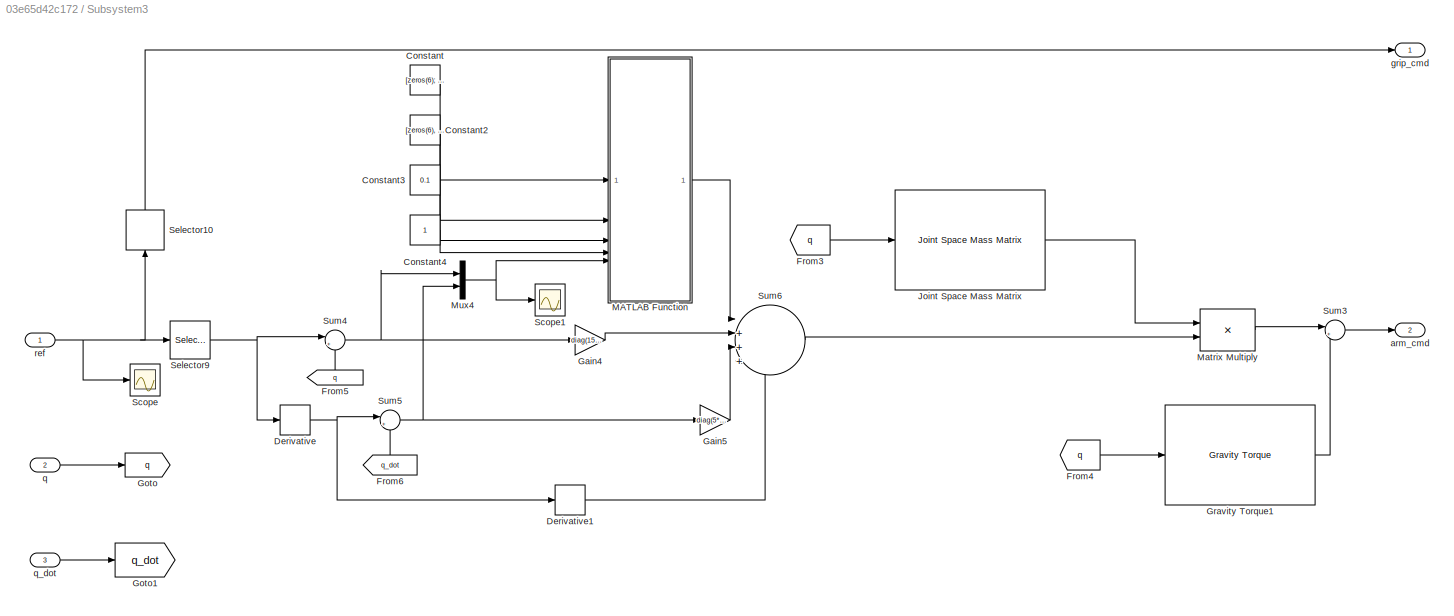
BLOCK [SubSystem] Subsystem3
  Commented = on
BLOCK [Constant] Subsystem3/Constant
  Value = [zeros(6); eye(6)]
BLOCK [Constant] Subsystem3/Constant2
  Value = [zeros(6), 1000*eye(6); 1000*eye(6), 10*eye(6)];
BLOCK [Constant] Subsystem3/Constant3
  Value = 0.1
BLOCK [Constant] Subsystem3/Constant4
BLOCK [Derivative] Subsystem3/Derivative
BLOCK [Derivative] Subsystem3/Derivative1
BLOCK [From] Subsystem3/From3
  GotoTag = q
BLOCK [From] Subsystem3/From4
  GotoTag = q
BLOCK [From] Subsystem3/From5
  GotoTag = q
  NameLocation = right
BLOCK [From] Subsystem3/From6
  GotoTag = q_dot
  NameLocation = right
BLOCK [Gain] Subsystem3/Gain4
  Gain = diag(15*ones(1,6))
  Multiplication = Matrix(K*u)
BLOCK [Gain] Subsystem3/Gain5
  Gain = diag(5*ones(1,6))
  Multiplication = Matrix(K*u)
BLOCK [Goto] Subsystem3/Goto
  GotoTag = q
BLOCK [Goto] Subsystem3/Goto1
  GotoTag = q_dot
BLOCK [Reference] Subsystem3/Gravity Torque1  REF=robotmaniplib/Gravity Torque
  SourceBlock = robotmaniplib/Gravity Torque
  SourceType = Gravity Torque
BLOCK [Reference] Subsystem3/Joint Space Mass Matrix  REF=robotmaniplib/Joint Space Mass Matrix
  SourceBlock = robotmaniplib/Joint Space Mass Matrix
  SourceType = Joint Space Mass Matrix
BLOCK [SubSystem] Subsystem3/MATLAB Function
  ErrorFcn = Stateflow.Translate.translate
  PermitHierarchicalResolution = ExplicitOnly
  SFBlockType = MATLAB Function
  TreatAsAtomicUnit = on
BLOCK [Demux] Subsystem3/MATLAB Function/ Demux 
  Outputs = 1
BLOCK [S-Function] Subsystem3/MATLAB Function/ SFunction 
  EnableBusSupport = off
  FunctionName = sf_sfun
  PortCounts = [5 2]
  SFcnIsStateOwnerBlock = off
  SFunctionDeploymentMode = off
  Tag = Stateflow S-Function 11
BLOCK [Terminator] Subsystem3/MATLAB Function/ Terminator 
BLOCK [Inport] Subsystem3/MATLAB Function/D
BLOCK [Inport] Subsystem3/MATLAB Function/Q
  Port = 2
BLOCK [Inport] Subsystem3/MATLAB Function/eps
  Port = 3
BLOCK [Inport] Subsystem3/MATLAB Function/errdata
  Port = 5
BLOCK [Inport] Subsystem3/MATLAB Function/rho
  Port = 4
BLOCK [Outport] Subsystem3/MATLAB Function/w
BLOCK [Product] Subsystem3/Matrix Multiply
  Multiplication = Matrix(*)
BLOCK [Mux] Subsystem3/Mux4
  DisplayOption = bar
  Inputs = 2
BLOCK [Scope] Subsystem3/Scope
  ActiveDisplayYMaximum = 2.9450000000090171
  ActiveDisplayYMinimum = -2.9450000000022034
  DataLoggingDecimation = 1
  DataLoggingLimitDataPoints = on
  DataLoggingSaveFormat = Array
  DataLoggingVariableName = ScopeData18
  Floating = off
  GraphicalSettings = {"Style":{"BackgroundColor":[0.12941176470588237,0.12941176470588237,0.12941176470588237],"AxesColor":[0.07058823529411765,0.07058823529411765,0.07058823529411765],"LabelsColor":[0.8509803921568627,0.8509803921568627,0.8509803921568627],"PreserveColors":false,"Visible":[true,true,true,true,true,true,true],"LineStyle":["-","-","-","-","-","-","-"],"LineWidth":[1.5,1.5,1.5,1.5,1.5,1.5,1.5],"BarWidth...<+2634ch>
  MultipleDisplayCache = [{"MaxYLimMag":2.9450000000090171,"MaxYLimReal":2.9450000000090171,"MinYLimMag":0,"MinYLimReal":-2.9450000000022034,"PlotAsMagnitudePhase":false,"ShowGrid":true,"ShowLegend":false,"Title":"%<SignalLabel>","YLabel":""}]
  NumInputPorts = 1
  ScopeFrameLocation = window
  Visible = on
  WasSavedAsWebScope = on
  WindowPosition = [606.000000,313.000000,324.000000,239.000000,]
BLOCK [Scope] Subsystem3/Scope1
  ActiveDisplayYMaximum = 1.1482232485950588
  ActiveDisplayYMinimum = -0.9495299141310265
  DataLoggingDecimation = 1
  DataLoggingLimitDataPoints = on
  DataLoggingSaveFormat = Array
  DataLoggingVariableName = ScopeData20
  Floating = off
  GraphicalSettings = {"Style":{"BackgroundColor":[0.12941176470588237,0.12941176470588237,0.12941176470588237],"AxesColor":[0.07058823529411765,0.07058823529411765,0.07058823529411765],"LabelsColor":[0.8509803921568627,0.8509803921568627,0.8509803921568627],"PreserveColors":false,"Visible":[true,true,true,true,true,true,false,false,false,false,false,false],"LineStyle":["-","-","-","-","-","-","-","-","-","-","-","-"],...<+3206ch>
  MultipleDisplayCache = [{"MaxYLimMag":1.1482232485950588,"MaxYLimReal":1.1482232485950588,"MinYLimMag":0,"MinYLimReal":-0.9495299141310265,"PlotAsMagnitudePhase":false,"ShowGrid":true,"ShowLegend":true,"Title":"%<SignalLabel>","YLabel":""}]
  NumInputPorts = 1
  ScopeFrameLocation = window
  ShowLegend = on
  Visible = on
  WasSavedAsWebScope = on
  WindowPosition = [606.000000,313.000000,324.000000,239.000000,]
BLOCK [Selector] Subsystem3/Selector10
  IndexOptions = Index vector (dialog)
  Indices = [4]
  InputPortWidth = 7
  NameLocation = right
  OutputSizes = 1
BLOCK [Selector] Subsystem3/Selector9
  IndexOptions = Index vector (dialog)
  Indices = [1 2 3 5 6 7]
  InputPortWidth = 7
  OutputSizes = 1
BLOCK [Sum] Subsystem3/Sum3
  Inputs = |++
BLOCK [Sum] Subsystem3/Sum4
  Inputs = |+-
BLOCK [Sum] Subsystem3/Sum5
  Inputs = |+-
BLOCK [Sum] Subsystem3/Sum6
  Inputs = |++++
BLOCK [Outport] Subsystem3/arm_cmd
  Port = 2
BLOCK [Outport] Subsystem3/grip_cmd
BLOCK [Inport] Subsystem3/q
  Port = 2
BLOCK [Inport] Subsystem3/q_dot
  Port = 3
BLOCK [Inport] Subsystem3/ref
BLOCK [Sum] Sum
  Inputs = |+-
BLOCK [ToWorkspace] To Workspace4
  FixptAsFi = on
  MaxDataPoints = inf
  SampleTime = -1
  SaveFormat = Structure With Time
  VariableName = x_sim
BLOCK [ToWorkspace] To Workspace5
  FixptAsFi = on
  MaxDataPoints = inf
  SampleTime = -1
  SaveFormat = Structure With Time
  VariableName = tau_sim
BLOCK [StateSpace] Transverse Plane
  A = Am_z
  B = Bm_z
  C = eye(2)
  D = zeros(2,1)
  InitialCondition = x0(9:end)
BLOCK [SubSystem] Triggered Subsystem
  Commented = on
  TreatAsAtomicUnit = on
BLOCK [Reference] Triggered Subsystem/Compare To Constant  REF=simulink/Logic and Bit
Operations/Compare
To Constant
  SourceBlock = simulink/Logic and Bit\nOperations/Compare\nTo Constant
  SourceType = Compare To Constant
BLOCK [Constant] Triggered Subsystem/Constant
BLOCK [Constant] Triggered Subsystem/Constant1
BLOCK [DataStoreRead] Triggered Subsystem/Data Store Read
  DataStoreName = play_enbled
  IndexOptions = Index vector (dialog)
  Indices = 1
  OutputSizes = 1
BLOCK [DataStoreWrite] Triggered Subsystem/Data Store Write3
  DataStoreName = play_enbled
  IndexOptions = Index vector (dialog)
  Indices = 1
  OutputSizes = 1
BLOCK [Inport] Triggered Subsystem/In1
BLOCK [Memory] Triggered Subsystem/Memory
  InheritSampleTime = on
  NameLocation = top
BLOCK [Switch] Triggered Subsystem/Switch
  Criteria = u2 > Threshold
  InputSameDT = off
  SaturateOnIntegerOverflow = off
BLOCK [Switch] Triggered Subsystem/Switch1
  Criteria = u2 > Threshold
  InputSameDT = off
  SaturateOnIntegerOverflow = off
BLOCK [TriggerPort] Triggered Subsystem/Trigger
  StatesWhenEnabling = held
  VariantControl = (inherit)
BLOCK [Outport] Triggered Subsystem/trigger_time
BLOCK [Reference] World  REF=sm_lib/Frames and
Transforms/World Frame
  Commented = on
  SourceBlock = sm_lib/Frames and\nTransforms/World Frame
  SourceType = World Frame
BLOCK [Record] XY Graph
  CompatibilityTag = XY
  FileSettingsInternal = {"entries":[{"content":{"excelSettings":{"content":{},"type":"Streamout.ExcelSettings"},"parquetSettings":{"content":{},"type":"Streamout.ParquetSettings"}},"type":"Streamout.FileSettingStorage","uuid":""}],"packageUris":["http:\/\/schema.mathworks.com\/mf0\/streamout_blocks\/R2020a"],"version":"1.0"}
  FrameSettings = [0, 0]
  Layout = [1 1]
  NumPorts = 2.0
  SignalsInternal = {"entries":[{"content":{"signals":[{"content":{"blockPath":[],"dimensions":[1,1],"domain":"","lineColor":"#77ac30","lineWidth":2,"plots":[ 1 ],"port":1,"sid":[""],"signalID":1,"signalName":"r2"},"type":"RecordBlkView.Signal","uuid":""},{"content":{"blockPath":[],"dimensions":[1,1],"domain":"","lineColor":"#4dbeee","lineWidth":2,"plots":[ 1 ],"port":2,"sid":[""],"signalID":2,"signalName":"r2"},"typ...<+182ch>
  VisualizationBindings = {"xyplotplugin":{"info":[{"series":[{"bindingParametersList":[{"parameter":"X-Axis","signalID":1,"signalName":"r2"},{"parameter":"Y-Axis","signalID":2,"signalName":"r2"}],"seriesID":0}],"subplotID":1}]}}
BLOCK [Record] XY Graph1
  CompatibilityTag = XY
  FileSettingsInternal = {"entries":[{"content":{"excelSettings":{"content":{},"type":"Streamout.ExcelSettings"},"parquetSettings":{"content":{},"type":"Streamout.ParquetSettings"}},"type":"Streamout.FileSettingStorage","uuid":""}],"packageUris":["http:\/\/schema.mathworks.com\/mf0\/streamout_blocks\/R2020a"],"version":"1.0"}
  FrameSettings = [0, 0]
  Layout = [1 1]
  NumPorts = 2.0
  SignalsInternal = {"entries":[{"content":{"signals":[{"content":{"blockPath":[],"dimensions":[1],"domain":"","lineColor":"#a2142f","plots":[ 1 ],"port":1,"sid":[""],"signalID":1,"signalName":"Demux:1"},"type":"RecordBlkView.Signal","uuid":""},{"content":{"blockPath":[],"dimensions":[1],"domain":"","lineColor":"#139fff","plots":[ 1 ],"port":2,"sid":[""],"signalID":2,"signalName":"Demux:2"},"type":"RecordBlkView.Sign...<+160ch>
  VisualizationBindings = {"xyplotplugin":{"info":[{"series":[{"bindingParametersList":[{"parameter":"X-Axis","signalID":1,"signalName":"Demux:1"},{"parameter":"Y-Axis","signalID":2,"signalName":"Demux:2"}],"seriesID":0}],"subplotID":1}]}}
BLOCK [Constant] Zero
  OutDataTypeStr = Inherit: Inherit via back propagation
  Value = zeros(6,1)
BLOCK [SubSystem] base
  Commented = on
BLOCK [PMIOPort] base/F
  Side = Left
BLOCK [Reference] base/Inertia  REF=sm_lib/Body Elements/Inertia
  SourceBlock = sm_lib/Body Elements/Inertia
  SourceType = Inertia
BLOCK [Reference] base/InertiaOriginTransform  REF=sm_lib/Frames and
Transforms/Rigid
Transform
  SourceBlock = sm_lib/Frames and\nTransforms/Rigid\nTransform
  SourceType = Rigid\nTransform
BLOCK [Reference] base/ReferenceFrame  REF=sm_lib/Frames and
Transforms/Reference
Frame
  SourceBlock = sm_lib/Frames and\nTransforms/Reference\nFrame
  SourceType = Reference\nFrame
BLOCK [Reference] base_joint  REF=sm_lib/Joints/Weld Joint
  Commented = on
  SourceBlock = sm_lib/Joints/Weld Joint
  SourceType = Weld Joint
BLOCK [SubSystem] base_link
  Commented = on
BLOCK [PMIOPort] base_link/F
  Side = Left
BLOCK [PMIOPort] base_link/F1
  Port = 3
  Side = Right
BLOCK [PMIOPort] base_link/F2
  Port = 2
  Side = Right
BLOCK [Reference] base_link/Inertia  REF=sm_lib/Body Elements/Inertia
  SourceBlock = sm_lib/Body Elements/Inertia
  SourceType = Inertia
BLOCK [Reference] base_link/InertiaOriginTransform  REF=sm_lib/Frames and
Transforms/Rigid
Transform
  SourceBlock = sm_lib/Frames and\nTransforms/Rigid\nTransform
  SourceType = Rigid\nTransform
BLOCK [Reference] base_link/ReferenceFrame  REF=sm_lib/Frames and
Transforms/Reference
Frame
  SourceBlock = sm_lib/Frames and\nTransforms/Reference\nFrame
  SourceType = Reference\nFrame
BLOCK [Reference] base_link/base_link_base_fixed_joint_OriginTransform  REF=sm_lib/Frames and
Transforms/Rigid
Transform
  SourceBlock = sm_lib/Frames and\nTransforms/Rigid\nTransform
  SourceType = Rigid\nTransform
BLOCK [Reference] base_link/base_link_base_link_inertia_OriginTransform  REF=sm_lib/Frames and
Transforms/Rigid
Transform
  SourceBlock = sm_lib/Frames and\nTransforms/Rigid\nTransform
  SourceType = Rigid\nTransform
BLOCK [Reference] base_link_base_fixed_joint  REF=sm_lib/Joints/Weld Joint
  Commented = on
  SourceBlock = sm_lib/Joints/Weld Joint
  SourceType = Weld Joint
BLOCK [Reference] base_link_base_link_inertia  REF=sm_lib/Joints/Weld Joint
  Commented = on
  SourceBlock = sm_lib/Joints/Weld Joint
  SourceType = Weld Joint
BLOCK [SubSystem] base_link_inertia
  Commented = on
BLOCK [PMIOPort] base_link_inertia/F
  Side = Left
BLOCK [PMIOPort] base_link_inertia/F1
  Port = 2
  Side = Right
BLOCK [Reference] base_link_inertia/Inertia  REF=sm_lib/Body Elements/Inertia
  SourceBlock = sm_lib/Body Elements/Inertia
  SourceType = Inertia
BLOCK [Reference] base_link_inertia/InertiaOriginTransform  REF=sm_lib/Frames and
Transforms/Rigid
Transform
  SourceBlock = sm_lib/Frames and\nTransforms/Rigid\nTransform
  SourceType = Rigid\nTransform
BLOCK [Reference] base_link_inertia/ReferenceFrame  REF=sm_lib/Frames and
Transforms/Reference
Frame
  SourceBlock = sm_lib/Frames and\nTransforms/Reference\nFrame
  SourceType = Reference\nFrame
BLOCK [Reference] base_link_inertia/Visual  REF=sm_lib/Body Elements/File Solid
  SourceBlock = sm_lib/Body Elements/File Solid
  SourceType = File Solid
BLOCK [Reference] base_link_inertia/VisualOriginTransform  REF=sm_lib/Frames and
Transforms/Rigid
Transform
  SourceBlock = sm_lib/Frames and\nTransforms/Rigid\nTransform
  SourceType = Rigid\nTransform
BLOCK [Reference] base_link_inertia/shoulder_pan_joint_AxisTransform  REF=sm_lib/Frames and
Transforms/Rigid
Transform
  SourceBlock = sm_lib/Frames and\nTransforms/Rigid\nTransform
  SourceType = Rigid\nTransform
BLOCK [Reference] base_link_inertia/shoulder_pan_joint_OriginTransform  REF=sm_lib/Frames and
Transforms/Rigid
Transform
  SourceBlock = sm_lib/Frames and\nTransforms/Rigid\nTransform
  SourceType = Rigid\nTransform
BLOCK [Reference] elbow_joint  REF=sm_lib/Joints/Revolute Joint
  Commented = on
  SourceBlock = sm_lib/Joints/Revolute Joint
  SourceType = Revolute Joint
BLOCK [SubSystem] flange
  Commented = on
BLOCK [PMIOPort] flange/F
  Side = Left
BLOCK [PMIOPort] flange/F1
  Port = 3
  Side = Right
BLOCK [PMIOPort] flange/F2
  Port = 2
  Side = Right
BLOCK [Reference] flange/Inertia  REF=sm_lib/Body Elements/Inertia
  SourceBlock = sm_lib/Body Elements/Inertia
  SourceType = Inertia
BLOCK [Reference] flange/InertiaOriginTransform  REF=sm_lib/Frames and
Transforms/Rigid
Transform
  SourceBlock = sm_lib/Frames and\nTransforms/Rigid\nTransform
  SourceType = Rigid\nTransform
BLOCK [Reference] flange/ReferenceFrame  REF=sm_lib/Frames and
Transforms/Reference
Frame
  SourceBlock = sm_lib/Frames and\nTransforms/Reference\nFrame
  SourceType = Reference\nFrame
BLOCK [Reference] flange/flange_tool0_OriginTransform  REF=sm_lib/Frames and
Transforms/Rigid
Transform
  SourceBlock = sm_lib/Frames and\nTransforms/Rigid\nTransform
  SourceType = Rigid\nTransform
BLOCK [Reference] flange/robotiq_85_base_joint_OriginTransform  REF=sm_lib/Frames and
Transforms/Rigid
Transform
  SourceBlock = sm_lib/Frames and\nTransforms/Rigid\nTransform
  SourceType = Rigid\nTransform
BLOCK [Reference] flange_tool0  REF=sm_lib/Joints/Weld Joint
  Commented = on
  SourceBlock = sm_lib/Joints/Weld Joint
  SourceType = Weld Joint
BLOCK [SubSystem] forearm_link
  Commented = on
BLOCK [PMIOPort] forearm_link/F
  Side = Left
BLOCK [PMIOPort] forearm_link/F1
  Port = 2
  Side = Right
BLOCK [PMIOPort] forearm_link/F2
  Port = 3
  Side = Left
BLOCK [Reference] forearm_link/Inertia  REF=sm_lib/Body Elements/Inertia
  SourceBlock = sm_lib/Body Elements/Inertia
  SourceType = Inertia
BLOCK [Reference] forearm_link/InertiaOriginTransform  REF=sm_lib/Frames and
Transforms/Rigid
Transform
  SourceBlock = sm_lib/Frames and\nTransforms/Rigid\nTransform
  SourceType = Rigid\nTransform
BLOCK [Reference] forearm_link/ReferenceFrame  REF=sm_lib/Frames and
Transforms/Reference
Frame
  SourceBlock = sm_lib/Frames and\nTransforms/Reference\nFrame
  SourceType = Reference\nFrame
BLOCK [Reference] forearm_link/Visual  REF=sm_lib/Body Elements/File Solid
  NameLocation = top
  SourceBlock = sm_lib/Body Elements/File Solid
  SourceType = File Solid
BLOCK [Reference] forearm_link/VisualOriginTransform  REF=sm_lib/Frames and
Transforms/Rigid
Transform
  SourceBlock = sm_lib/Frames and\nTransforms/Rigid\nTransform
  SourceType = Rigid\nTransform
BLOCK [Reference] forearm_link/elbow_joint_AxisInvTransform  REF=sm_lib/Frames and
Transforms/Rigid
Transform
  SourceBlock = sm_lib/Frames and\nTransforms/Rigid\nTransform
  SourceType = Rigid\nTransform
BLOCK [Reference] forearm_link/wrist_1_joint_AxisTransform  REF=sm_lib/Frames and
Transforms/Rigid
Transform
  SourceBlock = sm_lib/Frames and\nTransforms/Rigid\nTransform
  SourceType = Rigid\nTransform
BLOCK [Reference] forearm_link/wrist_1_joint_OriginTransform  REF=sm_lib/Frames and
Transforms/Rigid
Transform
  SourceBlock = sm_lib/Frames and\nTransforms/Rigid\nTransform
  SourceType = Rigid\nTransform
BLOCK [SubSystem] ft_frame
  Commented = on
BLOCK [PMIOPort] ft_frame/F
  Side = Left
BLOCK [Reference] ft_frame/Inertia  REF=sm_lib/Body Elements/Inertia
  SourceBlock = sm_lib/Body Elements/Inertia
  SourceType = Inertia
BLOCK [Reference] ft_frame/InertiaOriginTransform  REF=sm_lib/Frames and
Transforms/Rigid
Transform
  SourceBlock = sm_lib/Frames and\nTransforms/Rigid\nTransform
  SourceType = Rigid\nTransform
BLOCK [Reference] ft_frame/ReferenceFrame  REF=sm_lib/Frames and
Transforms/Reference
Frame
  SourceBlock = sm_lib/Frames and\nTransforms/Reference\nFrame
  SourceType = Reference\nFrame
BLOCK [SubSystem] ground_plane
  Commented = on
BLOCK [PMIOPort] ground_plane/F
  Side = Left
BLOCK [PMIOPort] ground_plane/F1
  NameLocation = top
  Port = 2
  Side = Right
BLOCK [PMIOPort] ground_plane/F2
  NameLocation = top
  Port = 3
  Side = Right
BLOCK [PMIOPort] ground_plane/F3
  NameLocation = top
  Port = 4
  Side = Right
BLOCK [PMIOPort] ground_plane/F4
  NameLocation = top
  Port = 5
  Side = Right
BLOCK [PMIOPort] ground_plane/F5
  NameLocation = top
  Port = 6
  Side = Right
BLOCK [PMIOPort] ground_plane/F6
  NameLocation = top
  Port = 7
  Side = Right
BLOCK [Reference] ground_plane/Inertia  REF=sm_lib/Body Elements/Inertia
  SourceBlock = sm_lib/Body Elements/Inertia
  SourceType = Inertia
BLOCK [Reference] ground_plane/InertiaOriginTransform  REF=sm_lib/Frames and
Transforms/Rigid
Transform
  SourceBlock = sm_lib/Frames and\nTransforms/Rigid\nTransform
  SourceType = Rigid\nTransform
BLOCK [Reference] ground_plane/ReferenceFrame  REF=sm_lib/Frames and
Transforms/Reference
Frame
  SourceBlock = sm_lib/Frames and\nTransforms/Reference\nFrame
  SourceType = Reference\nFrame
BLOCK [Reference] ground_plane/Spatial Contact Force  REF=sm_lib/Forces and
Torques/Spatial
Contact Force
  SourceBlock = sm_lib/Forces and\nTorques/Spatial\nContact Force
  SourceType = Spatial\nContact Force
BLOCK [Reference] ground_plane/Spatial Contact Force1  REF=sm_lib/Forces and
Torques/Spatial
Contact Force
  SourceBlock = sm_lib/Forces and\nTorques/Spatial\nContact Force
  SourceType = Spatial\nContact Force
BLOCK [Reference] ground_plane/Spatial Contact Force2  REF=sm_lib/Forces and
Torques/Spatial
Contact Force
  SourceBlock = sm_lib/Forces and\nTorques/Spatial\nContact Force
  SourceType = Spatial\nContact Force
BLOCK [Reference] ground_plane/Spatial Contact Force3  REF=sm_lib/Forces and
Torques/Spatial
Contact Force
  SourceBlock = sm_lib/Forces and\nTorques/Spatial\nContact Force
  SourceType = Spatial\nContact Force
BLOCK [Reference] ground_plane/Spatial Contact Force4  REF=sm_lib/Forces and
Torques/Spatial
Contact Force
  SourceBlock = sm_lib/Forces and\nTorques/Spatial\nContact Force
  SourceType = Spatial\nContact Force
BLOCK [Reference] ground_plane/Spatial Contact Force5  REF=sm_lib/Forces and
Torques/Spatial
Contact Force
  SourceBlock = sm_lib/Forces and\nTorques/Spatial\nContact Force
  SourceType = Spatial\nContact Force
BLOCK [Reference] ground_plane/Visual  REF=sm_lib/Body Elements/Brick Solid
  SourceBlock = sm_lib/Body Elements/Brick Solid
  SourceType = Brick Solid
BLOCK [Reference] ground_plane/VisualOriginTransform  REF=sm_lib/Frames and
Transforms/Rigid
Transform
  SourceBlock = sm_lib/Frames and\nTransforms/Rigid\nTransform
  SourceType = Rigid\nTransform
BLOCK [Reference] ground_plane_joint  REF=sm_lib/Joints/Weld Joint
  Commented = on
  SourceBlock = sm_lib/Joints/Weld Joint
  SourceType = Weld Joint
BLOCK [Reference] robotiq_85_base_joint  REF=sm_lib/Joints/Weld Joint
  Commented = on
  SourceBlock = sm_lib/Joints/Weld Joint
  SourceType = Weld Joint
BLOCK [SubSystem] robotiq_85_base_link
  Commented = on
BLOCK [PMIOPort] robotiq_85_base_link/F
  Side = Left
BLOCK [PMIOPort] robotiq_85_base_link/F1
  Port = 5
  Side = Right
BLOCK [PMIOPort] robotiq_85_base_link/F2
  Port = 4
  Side = Right
BLOCK [PMIOPort] robotiq_85_base_link/F3
  Port = 3
  Side = Right
BLOCK [PMIOPort] robotiq_85_base_link/F4
  Port = 2
  Side = Right
BLOCK [Reference] robotiq_85_base_link/Inertia  REF=sm_lib/Body Elements/Inertia
  SourceBlock = sm_lib/Body Elements/Inertia
  SourceType = Inertia
BLOCK [Reference] robotiq_85_base_link/InertiaOriginTransform  REF=sm_lib/Frames and
Transforms/Rigid
Transform
  SourceBlock = sm_lib/Frames and\nTransforms/Rigid\nTransform
  SourceType = Rigid\nTransform
BLOCK [Reference] robotiq_85_base_link/ReferenceFrame  REF=sm_lib/Frames and
Transforms/Reference
Frame
  SourceBlock = sm_lib/Frames and\nTransforms/Reference\nFrame
  SourceType = Reference\nFrame
BLOCK [Reference] robotiq_85_base_link/Visual  REF=sm_lib/Body Elements/File Solid
  SourceBlock = sm_lib/Body Elements/File Solid
  SourceType = File Solid
BLOCK [Reference] robotiq_85_base_link/VisualOriginTransform  REF=sm_lib/Frames and
Transforms/Rigid
Transform
  SourceBlock = sm_lib/Frames and\nTransforms/Rigid\nTransform
  SourceType = Rigid\nTransform
BLOCK [Reference] robotiq_85_base_link/robotiq_85_left_inner_knuckle_joint_AxisTransform  REF=sm_lib/Frames and
Transforms/Rigid
Transform
  SourceBlock = sm_lib/Frames and\nTransforms/Rigid\nTransform
  SourceType = Rigid\nTransform
BLOCK [Reference] robotiq_85_base_link/robotiq_85_left_inner_knuckle_joint_OriginTransform  REF=sm_lib/Frames and
Transforms/Rigid
Transform
  SourceBlock = sm_lib/Frames and\nTransforms/Rigid\nTransform
  SourceType = Rigid\nTransform
BLOCK [Reference] robotiq_85_base_link/robotiq_85_left_knuckle_joint_AxisTransform  REF=sm_lib/Frames and
Transforms/Rigid
Transform
  SourceBlock = sm_lib/Frames and\nTransforms/Rigid\nTransform
  SourceType = Rigid\nTransform
BLOCK [Reference] robotiq_85_base_link/robotiq_85_left_knuckle_joint_OriginTransform  REF=sm_lib/Frames and
Transforms/Rigid
Transform
  SourceBlock = sm_lib/Frames and\nTransforms/Rigid\nTransform
  SourceType = Rigid\nTransform
BLOCK [Reference] robotiq_85_base_link/robotiq_85_right_inner_knuckle_joint_AxisTransform  REF=sm_lib/Frames and
Transforms/Rigid
Transform
  SourceBlock = sm_lib/Frames and\nTransforms/Rigid\nTransform
  SourceType = Rigid\nTransform
BLOCK [Reference] robotiq_85_base_link/robotiq_85_right_inner_knuckle_joint_OriginTransform  REF=sm_lib/Frames and
Transforms/Rigid
Transform
  SourceBlock = sm_lib/Frames and\nTransforms/Rigid\nTransform
  SourceType = Rigid\nTransform
BLOCK [Reference] robotiq_85_base_link/robotiq_85_right_knuckle_joint_AxisTransform  REF=sm_lib/Frames and
Transforms/Rigid
Transform
  SourceBlock = sm_lib/Frames and\nTransforms/Rigid\nTransform
  SourceType = Rigid\nTransform
BLOCK [Reference] robotiq_85_base_link/robotiq_85_right_knuckle_joint_OriginTransform  REF=sm_lib/Frames and
Transforms/Rigid
Transform
  SourceBlock = sm_lib/Frames and\nTransforms/Rigid\nTransform
  SourceType = Rigid\nTransform
BLOCK [Reference] robotiq_85_left_finger_joint  REF=sm_lib/Joints/Weld Joint
  Commented = on
  SourceBlock = sm_lib/Joints/Weld Joint
  SourceType = Weld Joint
BLOCK [SubSystem] robotiq_85_left_finger_link
  Commented = on
BLOCK [PMIOPort] robotiq_85_left_finger_link/F
  Side = Left
BLOCK [PMIOPort] robotiq_85_left_finger_link/F1
  Port = 2
  Side = Right
BLOCK [Reference] robotiq_85_left_finger_link/Inertia  REF=sm_lib/Body Elements/Inertia
  SourceBlock = sm_lib/Body Elements/Inertia
  SourceType = Inertia
BLOCK [Reference] robotiq_85_left_finger_link/InertiaOriginTransform  REF=sm_lib/Frames and
Transforms/Rigid
Transform
  SourceBlock = sm_lib/Frames and\nTransforms/Rigid\nTransform
  SourceType = Rigid\nTransform
BLOCK [Reference] robotiq_85_left_finger_link/ReferenceFrame  REF=sm_lib/Frames and
Transforms/Reference
Frame
  SourceBlock = sm_lib/Frames and\nTransforms/Reference\nFrame
  SourceType = Reference\nFrame
BLOCK [Reference] robotiq_85_left_finger_link/Visual  REF=sm_lib/Body Elements/File Solid
  SourceBlock = sm_lib/Body Elements/File Solid
  SourceType = File Solid
BLOCK [Reference] robotiq_85_left_finger_link/VisualOriginTransform  REF=sm_lib/Frames and
Transforms/Rigid
Transform
  SourceBlock = sm_lib/Frames and\nTransforms/Rigid\nTransform
  SourceType = Rigid\nTransform
BLOCK [Reference] robotiq_85_left_finger_link/robotiq_85_left_finger_tip_joint_AxisTransform  REF=sm_lib/Frames and
Transforms/Rigid
Transform
  SourceBlock = sm_lib/Frames and\nTransforms/Rigid\nTransform
  SourceType = Rigid\nTransform
BLOCK [Reference] robotiq_85_left_finger_link/robotiq_85_left_finger_tip_joint_OriginTransform  REF=sm_lib/Frames and
Transforms/Rigid
Transform
  SourceBlock = sm_lib/Frames and\nTransforms/Rigid\nTransform
  SourceType = Rigid\nTransform
BLOCK [Reference] robotiq_85_left_finger_tip_joint  REF=sm_lib/Joints/Revolute Joint
  Commented = on
  SourceBlock = sm_lib/Joints/Revolute Joint
  SourceType = Revolute Joint
BLOCK [SubSystem] robotiq_85_left_finger_tip_link
  Commented = on
BLOCK [PMIOPort] robotiq_85_left_finger_tip_link/F
  Side = Left
BLOCK [Reference] robotiq_85_left_finger_tip_link/Inertia  REF=sm_lib/Body Elements/Inertia
  SourceBlock = sm_lib/Body Elements/Inertia
  SourceType = Inertia
BLOCK [Reference] robotiq_85_left_finger_tip_link/InertiaOriginTransform  REF=sm_lib/Frames and
Transforms/Rigid
Transform
  SourceBlock = sm_lib/Frames and\nTransforms/Rigid\nTransform
  SourceType = Rigid\nTransform
BLOCK [Reference] robotiq_85_left_finger_tip_link/ReferenceFrame  REF=sm_lib/Frames and
Transforms/Reference
Frame
  SourceBlock = sm_lib/Frames and\nTransforms/Reference\nFrame
  SourceType = Reference\nFrame
BLOCK [Reference] robotiq_85_left_finger_tip_link/Visual  REF=sm_lib/Body Elements/File Solid
  SourceBlock = sm_lib/Body Elements/File Solid
  SourceType = File Solid
BLOCK [Reference] robotiq_85_left_finger_tip_link/VisualOriginTransform  REF=sm_lib/Frames and
Transforms/Rigid
Transform
  SourceBlock = sm_lib/Frames and\nTransforms/Rigid\nTransform
  SourceType = Rigid\nTransform
BLOCK [Reference] robotiq_85_left_finger_tip_link/robotiq_85_left_finger_tip_joint_AxisInvTransform  REF=sm_lib/Frames and
Transforms/Rigid
Transform
  SourceBlock = sm_lib/Frames and\nTransforms/Rigid\nTransform
  SourceType = Rigid\nTransform
BLOCK [Reference] robotiq_85_left_inner_knuckle_joint  REF=sm_lib/Joints/Revolute Joint
  Commented = on
  SourceBlock = sm_lib/Joints/Revolute Joint
  SourceType = Revolute Joint
BLOCK [SubSystem] robotiq_85_left_inner_knuckle_link
  Commented = on
BLOCK [PMIOPort] robotiq_85_left_inner_knuckle_link/F
  Side = Left
BLOCK [Reference] robotiq_85_left_inner_knuckle_link/Inertia  REF=sm_lib/Body Elements/Inertia
  SourceBlock = sm_lib/Body Elements/Inertia
  SourceType = Inertia
BLOCK [Reference] robotiq_85_left_inner_knuckle_link/InertiaOriginTransform  REF=sm_lib/Frames and
Transforms/Rigid
Transform
  SourceBlock = sm_lib/Frames and\nTransforms/Rigid\nTransform
  SourceType = Rigid\nTransform
BLOCK [Reference] robotiq_85_left_inner_knuckle_link/ReferenceFrame  REF=sm_lib/Frames and
Transforms/Reference
Frame
  SourceBlock = sm_lib/Frames and\nTransforms/Reference\nFrame
  SourceType = Reference\nFrame
BLOCK [Reference] robotiq_85_left_inner_knuckle_link/Visual  REF=sm_lib/Body Elements/File Solid
  SourceBlock = sm_lib/Body Elements/File Solid
  SourceType = File Solid
BLOCK [Reference] robotiq_85_left_inner_knuckle_link/VisualOriginTransform  REF=sm_lib/Frames and
Transforms/Rigid
Transform
  SourceBlock = sm_lib/Frames and\nTransforms/Rigid\nTransform
  SourceType = Rigid\nTransform
BLOCK [Reference] robotiq_85_left_inner_knuckle_link/robotiq_85_left_inner_knuckle_joint_AxisInvTransform  REF=sm_lib/Frames and
Transforms/Rigid
Transform
  SourceBlock = sm_lib/Frames and\nTransforms/Rigid\nTransform
  SourceType = Rigid\nTransform
BLOCK [Reference] robotiq_85_left_knuckle_joint  REF=sm_lib/Joints/Revolute Joint
  Commented = on
  SourceBlock = sm_lib/Joints/Revolute Joint
  SourceType = Revolute Joint
BLOCK [SubSystem] robotiq_85_left_knuckle_link
  Commented = on
BLOCK [PMIOPort] robotiq_85_left_knuckle_link/F
  Side = Left
BLOCK [PMIOPort] robotiq_85_left_knuckle_link/F1
  Port = 2
  Side = Right
BLOCK [Reference] robotiq_85_left_knuckle_link/Inertia  REF=sm_lib/Body Elements/Inertia
  SourceBlock = sm_lib/Body Elements/Inertia
  SourceType = Inertia
BLOCK [Reference] robotiq_85_left_knuckle_link/InertiaOriginTransform  REF=sm_lib/Frames and
Transforms/Rigid
Transform
  SourceBlock = sm_lib/Frames and\nTransforms/Rigid\nTransform
  SourceType = Rigid\nTransform
BLOCK [Reference] robotiq_85_left_knuckle_link/ReferenceFrame  REF=sm_lib/Frames and
Transforms/Reference
Frame
  SourceBlock = sm_lib/Frames and\nTransforms/Reference\nFrame
  SourceType = Reference\nFrame
BLOCK [Reference] robotiq_85_left_knuckle_link/Visual  REF=sm_lib/Body Elements/File Solid
  SourceBlock = sm_lib/Body Elements/File Solid
  SourceType = File Solid
BLOCK [Reference] robotiq_85_left_knuckle_link/VisualOriginTransform  REF=sm_lib/Frames and
Transforms/Rigid
Transform
  SourceBlock = sm_lib/Frames and\nTransforms/Rigid\nTransform
  SourceType = Rigid\nTransform
BLOCK [Reference] robotiq_85_left_knuckle_link/robotiq_85_left_finger_joint_OriginTransform  REF=sm_lib/Frames and
Transforms/Rigid
Transform
  SourceBlock = sm_lib/Frames and\nTransforms/Rigid\nTransform
  SourceType = Rigid\nTransform
BLOCK [Reference] robotiq_85_left_knuckle_link/robotiq_85_left_knuckle_joint_AxisInvTransform  REF=sm_lib/Frames and
Transforms/Rigid
Transform
  SourceBlock = sm_lib/Frames and\nTransforms/Rigid\nTransform
  SourceType = Rigid\nTransform
BLOCK [Reference] robotiq_85_right_finger_joint  REF=sm_lib/Joints/Weld Joint
  Commented = on
  SourceBlock = sm_lib/Joints/Weld Joint
  SourceType = Weld Joint
BLOCK [SubSystem] robotiq_85_right_finger_link
  Commented = on
BLOCK [PMIOPort] robotiq_85_right_finger_link/F
  Side = Left
BLOCK [PMIOPort] robotiq_85_right_finger_link/F1
  Port = 2
  Side = Right
BLOCK [Reference] robotiq_85_right_finger_link/Inertia  REF=sm_lib/Body Elements/Inertia
  SourceBlock = sm_lib/Body Elements/Inertia
  SourceType = Inertia
BLOCK [Reference] robotiq_85_right_finger_link/InertiaOriginTransform  REF=sm_lib/Frames and
Transforms/Rigid
Transform
  SourceBlock = sm_lib/Frames and\nTransforms/Rigid\nTransform
  SourceType = Rigid\nTransform
BLOCK [Reference] robotiq_85_right_finger_link/ReferenceFrame  REF=sm_lib/Frames and
Transforms/Reference
Frame
  SourceBlock = sm_lib/Frames and\nTransforms/Reference\nFrame
  SourceType = Reference\nFrame
BLOCK [Reference] robotiq_85_right_finger_link/Visual  REF=sm_lib/Body Elements/File Solid
  SourceBlock = sm_lib/Body Elements/File Solid
  SourceType = File Solid
BLOCK [Reference] robotiq_85_right_finger_link/VisualOriginTransform  REF=sm_lib/Frames and
Transforms/Rigid
Transform
  SourceBlock = sm_lib/Frames and\nTransforms/Rigid\nTransform
  SourceType = Rigid\nTransform
BLOCK [Reference] robotiq_85_right_finger_link/robotiq_85_right_finger_tip_joint_AxisTransform  REF=sm_lib/Frames and
Transforms/Rigid
Transform
  SourceBlock = sm_lib/Frames and\nTransforms/Rigid\nTransform
  SourceType = Rigid\nTransform
BLOCK [Reference] robotiq_85_right_finger_link/robotiq_85_right_finger_tip_joint_OriginTransform  REF=sm_lib/Frames and
Transforms/Rigid
Transform
  SourceBlock = sm_lib/Frames and\nTransforms/Rigid\nTransform
  SourceType = Rigid\nTransform
BLOCK [Reference] robotiq_85_right_finger_tip_joint  REF=sm_lib/Joints/Revolute Joint
  Commented = on
  SourceBlock = sm_lib/Joints/Revolute Joint
  SourceType = Revolute Joint
BLOCK [SubSystem] robotiq_85_right_finger_tip_link
  Commented = on
BLOCK [PMIOPort] robotiq_85_right_finger_tip_link/F
  Side = Left
BLOCK [Reference] robotiq_85_right_finger_tip_link/Inertia  REF=sm_lib/Body Elements/Inertia
  SourceBlock = sm_lib/Body Elements/Inertia
  SourceType = Inertia
BLOCK [Reference] robotiq_85_right_finger_tip_link/InertiaOriginTransform  REF=sm_lib/Frames and
Transforms/Rigid
Transform
  SourceBlock = sm_lib/Frames and\nTransforms/Rigid\nTransform
  SourceType = Rigid\nTransform
BLOCK [Reference] robotiq_85_right_finger_tip_link/ReferenceFrame  REF=sm_lib/Frames and
Transforms/Reference
Frame
  SourceBlock = sm_lib/Frames and\nTransforms/Reference\nFrame
  SourceType = Reference\nFrame
BLOCK [Reference] robotiq_85_right_finger_tip_link/Visual  REF=sm_lib/Body Elements/File Solid
  SourceBlock = sm_lib/Body Elements/File Solid
  SourceType = File Solid
BLOCK [Reference] robotiq_85_right_finger_tip_link/VisualOriginTransform  REF=sm_lib/Frames and
Transforms/Rigid
Transform
  SourceBlock = sm_lib/Frames and\nTransforms/Rigid\nTransform
  SourceType = Rigid\nTransform
BLOCK [Reference] robotiq_85_right_finger_tip_link/robotiq_85_right_finger_tip_joint_AxisInvTransform  REF=sm_lib/Frames and
Transforms/Rigid
Transform
  SourceBlock = sm_lib/Frames and\nTransforms/Rigid\nTransform
  SourceType = Rigid\nTransform
BLOCK [Reference] robotiq_85_right_inner_knuckle_joint  REF=sm_lib/Joints/Revolute Joint
  Commented = on
  SourceBlock = sm_lib/Joints/Revolute Joint
  SourceType = Revolute Joint
BLOCK [SubSystem] robotiq_85_right_inner_knuckle_link
  Commented = on
BLOCK [PMIOPort] robotiq_85_right_inner_knuckle_link/F
  Side = Left
BLOCK [Reference] robotiq_85_right_inner_knuckle_link/Inertia  REF=sm_lib/Body Elements/Inertia
  SourceBlock = sm_lib/Body Elements/Inertia
  SourceType = Inertia
BLOCK [Reference] robotiq_85_right_inner_knuckle_link/InertiaOriginTransform  REF=sm_lib/Frames and
Transforms/Rigid
Transform
  SourceBlock = sm_lib/Frames and\nTransforms/Rigid\nTransform
  SourceType = Rigid\nTransform
BLOCK [Reference] robotiq_85_right_inner_knuckle_link/ReferenceFrame  REF=sm_lib/Frames and
Transforms/Reference
Frame
  SourceBlock = sm_lib/Frames and\nTransforms/Reference\nFrame
  SourceType = Reference\nFrame
BLOCK [Reference] robotiq_85_right_inner_knuckle_link/Visual  REF=sm_lib/Body Elements/File Solid
  SourceBlock = sm_lib/Body Elements/File Solid
  SourceType = File Solid
BLOCK [Reference] robotiq_85_right_inner_knuckle_link/VisualOriginTransform  REF=sm_lib/Frames and
Transforms/Rigid
Transform
  SourceBlock = sm_lib/Frames and\nTransforms/Rigid\nTransform
  SourceType = Rigid\nTransform
BLOCK [Reference] robotiq_85_right_inner_knuckle_link/robotiq_85_right_inner_knuckle_joint_AxisInvTransform  REF=sm_lib/Frames and
Transforms/Rigid
Transform
  SourceBlock = sm_lib/Frames and\nTransforms/Rigid\nTransform
  SourceType = Rigid\nTransform
BLOCK [Reference] robotiq_85_right_knuckle_joint  REF=sm_lib/Joints/Revolute Joint
  Commented = on
  SourceBlock = sm_lib/Joints/Revolute Joint
  SourceType = Revolute Joint
BLOCK [SubSystem] robotiq_85_right_knuckle_link
  Commented = on
BLOCK [PMIOPort] robotiq_85_right_knuckle_link/F
  Side = Left
BLOCK [PMIOPort] robotiq_85_right_knuckle_link/F1
  Port = 2
  Side = Right
BLOCK [Reference] robotiq_85_right_knuckle_link/Inertia  REF=sm_lib/Body Elements/Inertia
  SourceBlock = sm_lib/Body Elements/Inertia
  SourceType = Inertia
BLOCK [Reference] robotiq_85_right_knuckle_link/InertiaOriginTransform  REF=sm_lib/Frames and
Transforms/Rigid
Transform
  SourceBlock = sm_lib/Frames and\nTransforms/Rigid\nTransform
  SourceType = Rigid\nTransform
BLOCK [Reference] robotiq_85_right_knuckle_link/ReferenceFrame  REF=sm_lib/Frames and
Transforms/Reference
Frame
  SourceBlock = sm_lib/Frames and\nTransforms/Reference\nFrame
  SourceType = Reference\nFrame
BLOCK [Reference] robotiq_85_right_knuckle_link/Visual  REF=sm_lib/Body Elements/File Solid
  SourceBlock = sm_lib/Body Elements/File Solid
  SourceType = File Solid
BLOCK [Reference] robotiq_85_right_knuckle_link/VisualOriginTransform  REF=sm_lib/Frames and
Transforms/Rigid
Transform
  SourceBlock = sm_lib/Frames and\nTransforms/Rigid\nTransform
  SourceType = Rigid\nTransform
BLOCK [Reference] robotiq_85_right_knuckle_link/robotiq_85_right_finger_joint_OriginTransform  REF=sm_lib/Frames and
Transforms/Rigid
Transform
  SourceBlock = sm_lib/Frames and\nTransforms/Rigid\nTransform
  SourceType = Rigid\nTransform
BLOCK [Reference] robotiq_85_right_knuckle_link/robotiq_85_right_knuckle_joint_AxisInvTransform  REF=sm_lib/Frames and
Transforms/Rigid
Transform
  SourceBlock = sm_lib/Frames and\nTransforms/Rigid\nTransform
  SourceType = Rigid\nTransform
BLOCK [Reference] shoulder_lift_joint  REF=sm_lib/Joints/Revolute Joint
  Commented = on
  SourceBlock = sm_lib/Joints/Revolute Joint
  SourceType = Revolute Joint
BLOCK [SubSystem] shoulder_link
  Commented = on
BLOCK [PMIOPort] shoulder_link/F
  Port = 2
  Side = Left
BLOCK [PMIOPort] shoulder_link/F1
  Port = 3
  Side = Right
BLOCK [PMIOPort] shoulder_link/F2
  Side = Left
BLOCK [Reference] shoulder_link/Inertia  REF=sm_lib/Body Elements/Inertia
  SourceBlock = sm_lib/Body Elements/Inertia
  SourceType = Inertia
BLOCK [Reference] shoulder_link/InertiaOriginTransform  REF=sm_lib/Frames and
Transforms/Rigid
Transform
  SourceBlock = sm_lib/Frames and\nTransforms/Rigid\nTransform
  SourceType = Rigid\nTransform
BLOCK [Reference] shoulder_link/ReferenceFrame  REF=sm_lib/Frames and
Transforms/Reference
Frame
  SourceBlock = sm_lib/Frames and\nTransforms/Reference\nFrame
  SourceType = Reference\nFrame
BLOCK [Reference] shoulder_link/Visual  REF=sm_lib/Body Elements/File Solid
  NameLocation = top
  SourceBlock = sm_lib/Body Elements/File Solid
  SourceType = File Solid
BLOCK [Reference] shoulder_link/VisualOriginTransform  REF=sm_lib/Frames and
Transforms/Rigid
Transform
  SourceBlock = sm_lib/Frames and\nTransforms/Rigid\nTransform
  SourceType = Rigid\nTransform
BLOCK [Reference] shoulder_link/shoulder_lift_joint_AxisTransform  REF=sm_lib/Frames and
Transforms/Rigid
Transform
  SourceBlock = sm_lib/Frames and\nTransforms/Rigid\nTransform
  SourceType = Rigid\nTransform
BLOCK [Reference] shoulder_link/shoulder_lift_joint_OriginTransform  REF=sm_lib/Frames and
Transforms/Rigid
Transform
  SourceBlock = sm_lib/Frames and\nTransforms/Rigid\nTransform
  SourceType = Rigid\nTransform
BLOCK [Reference] shoulder_link/shoulder_pan_joint_AxisInvTransform  REF=sm_lib/Frames and
Transforms/Rigid
Transform
  SourceBlock = sm_lib/Frames and\nTransforms/Rigid\nTransform
  SourceType = Rigid\nTransform
BLOCK [Reference] shoulder_pan_joint  REF=sm_lib/Joints/Revolute Joint
  Commented = on
  SourceBlock = sm_lib/Joints/Revolute Joint
  SourceType = Revolute Joint
BLOCK [SubSystem] tool0
  Commented = on
BLOCK [PMIOPort] tool0/F
  Side = Left
BLOCK [Reference] tool0/Inertia  REF=sm_lib/Body Elements/Inertia
  SourceBlock = sm_lib/Body Elements/Inertia
  SourceType = Inertia
BLOCK [Reference] tool0/InertiaOriginTransform  REF=sm_lib/Frames and
Transforms/Rigid
Transform
  SourceBlock = sm_lib/Frames and\nTransforms/Rigid\nTransform
  SourceType = Rigid\nTransform
BLOCK [Reference] tool0/ReferenceFrame  REF=sm_lib/Frames and
Transforms/Reference
Frame
  SourceBlock = sm_lib/Frames and\nTransforms/Reference\nFrame
  SourceType = Reference\nFrame
BLOCK [SubSystem] upper_arm_link
  Commented = on
BLOCK [PMIOPort] upper_arm_link/F
  Side = Left
BLOCK [PMIOPort] upper_arm_link/F1
  Port = 2
  Side = Right
BLOCK [PMIOPort] upper_arm_link/F2
  Port = 3
  Side = Left
BLOCK [Reference] upper_arm_link/Inertia  REF=sm_lib/Body Elements/Inertia
  NameLocation = top
  SourceBlock = sm_lib/Body Elements/Inertia
  SourceType = Inertia
BLOCK [Reference] upper_arm_link/InertiaOriginTransform  REF=sm_lib/Frames and
Transforms/Rigid
Transform
  SourceBlock = sm_lib/Frames and\nTransforms/Rigid\nTransform
  SourceType = Rigid\nTransform
BLOCK [Reference] upper_arm_link/ReferenceFrame  REF=sm_lib/Frames and
Transforms/Reference
Frame
  SourceBlock = sm_lib/Frames and\nTransforms/Reference\nFrame
  SourceType = Reference\nFrame
BLOCK [Reference] upper_arm_link/Visual  REF=sm_lib/Body Elements/File Solid
  NameLocation = top
  SourceBlock = sm_lib/Body Elements/File Solid
  SourceType = File Solid
BLOCK [Reference] upper_arm_link/VisualOriginTransform  REF=sm_lib/Frames and
Transforms/Rigid
Transform
  SourceBlock = sm_lib/Frames and\nTransforms/Rigid\nTransform
  SourceType = Rigid\nTransform
BLOCK [Reference] upper_arm_link/elbow_joint_AxisTransform  REF=sm_lib/Frames and
Transforms/Rigid
Transform
  SourceBlock = sm_lib/Frames and\nTransforms/Rigid\nTransform
  SourceType = Rigid\nTransform
BLOCK [Reference] upper_arm_link/elbow_joint_OriginTransform  REF=sm_lib/Frames and
Transforms/Rigid
Transform
  SourceBlock = sm_lib/Frames and\nTransforms/Rigid\nTransform
  SourceType = Rigid\nTransform
BLOCK [Reference] upper_arm_link/shoulder_lift_joint_AxisInvTransform  REF=sm_lib/Frames and
Transforms/Rigid
Transform
  SourceBlock = sm_lib/Frames and\nTransforms/Rigid\nTransform
  SourceType = Rigid\nTransform
BLOCK [SubSystem] world
  Commented = on
BLOCK [PMIOPort] world/F
  Side = Left
BLOCK [PMIOPort] world/F1
  Port = 3
  Side = Right
BLOCK [PMIOPort] world/F2
  Port = 2
  Side = Right
BLOCK [Reference] world/ReferenceFrame  REF=sm_lib/Frames and
Transforms/Reference
Frame
  SourceBlock = sm_lib/Frames and\nTransforms/Reference\nFrame
  SourceType = Reference\nFrame
BLOCK [Reference] world/base_joint_OriginTransform  REF=sm_lib/Frames and
Transforms/Rigid
Transform
  SourceBlock = sm_lib/Frames and\nTransforms/Rigid\nTransform
  SourceType = Rigid\nTransform
BLOCK [Reference] world/ground_plane_joint_OriginTransform  REF=sm_lib/Frames and
Transforms/Rigid
Transform
  SourceBlock = sm_lib/Frames and\nTransforms/Rigid\nTransform
  SourceType = Rigid\nTransform
BLOCK [Reference] wrist_1_joint  REF=sm_lib/Joints/Revolute Joint
  Commented = on
  SourceBlock = sm_lib/Joints/Revolute Joint
  SourceType = Revolute Joint
BLOCK [SubSystem] wrist_1_link
  Commented = on
BLOCK [PMIOPort] wrist_1_link/F
  Side = Left
BLOCK [PMIOPort] wrist_1_link/F1
  Port = 2
  Side = Right
BLOCK [PMIOPort] wrist_1_link/F2
  Port = 3
  Side = Left
BLOCK [Reference] wrist_1_link/Inertia  REF=sm_lib/Body Elements/Inertia
  SourceBlock = sm_lib/Body Elements/Inertia
  SourceType = Inertia
BLOCK [Reference] wrist_1_link/InertiaOriginTransform  REF=sm_lib/Frames and
Transforms/Rigid
Transform
  SourceBlock = sm_lib/Frames and\nTransforms/Rigid\nTransform
  SourceType = Rigid\nTransform
BLOCK [Reference] wrist_1_link/ReferenceFrame  REF=sm_lib/Frames and
Transforms/Reference
Frame
  SourceBlock = sm_lib/Frames and\nTransforms/Reference\nFrame
  SourceType = Reference\nFrame
BLOCK [Reference] wrist_1_link/Visual  REF=sm_lib/Body Elements/File Solid
  NameLocation = top
  SourceBlock = sm_lib/Body Elements/File Solid
  SourceType = File Solid
BLOCK [Reference] wrist_1_link/VisualOriginTransform  REF=sm_lib/Frames and
Transforms/Rigid
Transform
  SourceBlock = sm_lib/Frames and\nTransforms/Rigid\nTransform
  SourceType = Rigid\nTransform
BLOCK [Reference] wrist_1_link/wrist_1_joint_AxisInvTransform  REF=sm_lib/Frames and
Transforms/Rigid
Transform
  SourceBlock = sm_lib/Frames and\nTransforms/Rigid\nTransform
  SourceType = Rigid\nTransform
BLOCK [Reference] wrist_1_link/wrist_2_joint_AxisTransform  REF=sm_lib/Frames and
Transforms/Rigid
Transform
  SourceBlock = sm_lib/Frames and\nTransforms/Rigid\nTransform
  SourceType = Rigid\nTransform
BLOCK [Reference] wrist_1_link/wrist_2_joint_OriginTransform  REF=sm_lib/Frames and
Transforms/Rigid
Transform
  SourceBlock = sm_lib/Frames and\nTransforms/Rigid\nTransform
  SourceType = Rigid\nTransform
BLOCK [Reference] wrist_2_joint  REF=sm_lib/Joints/Revolute Joint
  Commented = on
  SourceBlock = sm_lib/Joints/Revolute Joint
  SourceType = Revolute Joint
BLOCK [SubSystem] wrist_2_link
  Commented = on
BLOCK [PMIOPort] wrist_2_link/F
  Side = Left
BLOCK [PMIOPort] wrist_2_link/F1
  Port = 2
  Side = Right
BLOCK [PMIOPort] wrist_2_link/F2
  Port = 3
  Side = Left
BLOCK [Reference] wrist_2_link/Inertia  REF=sm_lib/Body Elements/Inertia
  SourceBlock = sm_lib/Body Elements/Inertia
  SourceType = Inertia
BLOCK [Reference] wrist_2_link/InertiaOriginTransform  REF=sm_lib/Frames and
Transforms/Rigid
Transform
  SourceBlock = sm_lib/Frames and\nTransforms/Rigid\nTransform
  SourceType = Rigid\nTransform
BLOCK [Reference] wrist_2_link/ReferenceFrame  REF=sm_lib/Frames and
Transforms/Reference
Frame
  SourceBlock = sm_lib/Frames and\nTransforms/Reference\nFrame
  SourceType = Reference\nFrame
BLOCK [Reference] wrist_2_link/Visual  REF=sm_lib/Body Elements/File Solid
  NameLocation = top
  SourceBlock = sm_lib/Body Elements/File Solid
  SourceType = File Solid
BLOCK [Reference] wrist_2_link/VisualOriginTransform  REF=sm_lib/Frames and
Transforms/Rigid
Transform
  SourceBlock = sm_lib/Frames and\nTransforms/Rigid\nTransform
  SourceType = Rigid\nTransform
BLOCK [Reference] wrist_2_link/wrist_2_joint_AxisInvTransform  REF=sm_lib/Frames and
Transforms/Rigid
Transform
  SourceBlock = sm_lib/Frames and\nTransforms/Rigid\nTransform
  SourceType = Rigid\nTransform
BLOCK [Reference] wrist_2_link/wrist_3_joint_AxisTransform  REF=sm_lib/Frames and
Transforms/Rigid
Transform
  SourceBlock = sm_lib/Frames and\nTransforms/Rigid\nTransform
  SourceType = Rigid\nTransform
BLOCK [Reference] wrist_2_link/wrist_3_joint_OriginTransform  REF=sm_lib/Frames and
Transforms/Rigid
Transform
  SourceBlock = sm_lib/Frames and\nTransforms/Rigid\nTransform
  SourceType = Rigid\nTransform
BLOCK [Reference] wrist_3_flange  REF=sm_lib/Joints/Weld Joint
  Commented = on
  SourceBlock = sm_lib/Joints/Weld Joint
  SourceType = Weld Joint
BLOCK [Reference] wrist_3_joint  REF=sm_lib/Joints/Revolute Joint
  Commented = on
  SourceBlock = sm_lib/Joints/Revolute Joint
  SourceType = Revolute Joint
BLOCK [SubSystem] wrist_3_link
  Commented = on
BLOCK [PMIOPort] wrist_3_link/F
  Side = Left
BLOCK [PMIOPort] wrist_3_link/F1
  Port = 3
  Side = Right
BLOCK [PMIOPort] wrist_3_link/F2
  Port = 2
  Side = Right
BLOCK [PMIOPort] wrist_3_link/F3
  Port = 4
  Side = Left
BLOCK [Reference] wrist_3_link/Inertia  REF=sm_lib/Body Elements/Inertia
  SourceBlock = sm_lib/Body Elements/Inertia
  SourceType = Inertia
BLOCK [Reference] wrist_3_link/InertiaOriginTransform  REF=sm_lib/Frames and
Transforms/Rigid
Transform
  SourceBlock = sm_lib/Frames and\nTransforms/Rigid\nTransform
  SourceType = Rigid\nTransform
BLOCK [Reference] wrist_3_link/ReferenceFrame  REF=sm_lib/Frames and
Transforms/Reference
Frame
  SourceBlock = sm_lib/Frames and\nTransforms/Reference\nFrame
  SourceType = Reference\nFrame
BLOCK [Reference] wrist_3_link/Visual  REF=sm_lib/Body Elements/File Solid
  NameLocation = top
  SourceBlock = sm_lib/Body Elements/File Solid
  SourceType = File Solid
BLOCK [Reference] wrist_3_link/VisualOriginTransform  REF=sm_lib/Frames and
Transforms/Rigid
Transform
  SourceBlock = sm_lib/Frames and\nTransforms/Rigid\nTransform
  SourceType = Rigid\nTransform
BLOCK [Reference] wrist_3_link/wrist_3_flange_OriginTransform  REF=sm_lib/Frames and
Transforms/Rigid
Transform
  SourceBlock = sm_lib/Frames and\nTransforms/Rigid\nTransform
  SourceType = Rigid\nTransform
BLOCK [Reference] wrist_3_link/wrist_3_joint_AxisInvTransform  REF=sm_lib/Frames and
Transforms/Rigid
Transform
  SourceBlock = sm_lib/Frames and\nTransforms/Rigid\nTransform
  SourceType = Rigid\nTransform
BLOCK [Reference] wrist_3_link/wrist_3_link_ft_frame_OriginTransform  REF=sm_lib/Frames and
Transforms/Rigid
Transform
  SourceBlock = sm_lib/Frames and\nTransforms/Rigid\nTransform
  SourceType = Rigid\nTransform
BLOCK [Reference] wrist_3_link_ft_frame  REF=sm_lib/Joints/Weld Joint
  Commented = on
  SourceBlock = sm_lib/Joints/Weld Joint
  SourceType = Weld Joint
ANNOTATION (root): theta_x = x(1); dot_theta_x = x(2); phi_x = x(3); dot_phi_x = x(4); theta_y = x(5); dot_theta_y = x(6); phi_y = x(7); dot_phi_y = x(8); theta_z = x(9); dot_theta_z = x(10);
ANNOTATION (root): Adaptive Controllers
ANNOTATION (root): Arm Controller
ANNOTATION (root): Ballbot Dynamic Plant
ANNOTATION (root): Gripper
ANNOTATION (root): MASTER JOINT
ANNOTATION (root): Reference Model
ANNOTATION (root): Robotic Arm
ANNOTATION (root): Signal Reference Elaboration
ANNOTATION (root): x_dot
LINE Clock2:1 -> Triggered Subsystem:1
NET Constant1:1 -> Goto1:1, Transverse Plane:1
LINE Demux1:3 -> Gain3:1
LINE Demux2:3 -> Gain2:1
LINE Demux3:1 -> Simulink-PS Converter2:1
LINE Demux3:2 -> Simulink-PS Converter3:1
LINE Demux3:3 -> Simulink-PS Converter4:1
LINE Demux3:4 -> Simulink-PS Converter5:1
LINE Demux3:5 -> Simulink-PS Converter6:1
LINE Demux3:6 -> Simulink-PS Converter7:1
LINE Demux4:1 -> Simulink-PS Converter10:1
LINE Demux4:3 -> Multiply1:1
LINE Demux4:5 -> Simulink-PS Converter11:1
LINE Demux4:7 -> Multiply:1
LINE Demux4:9 -> Simulink-PS Converter13:1
NET Demux:1 -> Gain:1, XY Graph1:1
NET Demux:2 -> Gain1:1, XY Graph1:2
LINE Detect Rise Positive:1 -> Triggered Subsystem:trigger
LINE From Workspace:1 -> Demux:1
LINE From1:1 -> Subsystem1:3
LINE From2:1 -> Subsystem2:3
LINE From3:1 -> Subsystem3:2
LINE From4:1 -> Subsystem3:3
LINE From:1 -> Subsystem:3
LINE FrontalPlane:1 -> Mux1:1
NET Gain1:1 -> FrontalPlane:1, Goto:1
LINE Gain2:1 -> XY Graph:1
LINE Gain3:1 -> XY Graph:2
NET Gain:1 -> Goto2:1, SaggitalPlane:1
NET Integrator1:1 -> Demux4:1, MATLAB Function1:1, MATLAB Function:1, Scope9:1, Selector3:1, Selector4:1, Selector5:1, Sum:2, To Workspace4:1
LINE MATLAB Function1:1 -> Integrator1:1
LINE MATLAB Function2:1 -> Subsystem3:1
LINE MATLAB Function:1 -> Detect Rise Positive:1
LINE Multiply1:1 -> Simulink-PS Converter8:1
LINE Multiply:1 -> Simulink-PS Converter:1
NET Mux1:1 -> Selector6:1, Selector7:1, Selector8:1, Sum:1
LINE Mux2:1 -> Goto3:1
LINE Mux3:1 -> Goto4:1
LINE Mux4:1 -> Goto5:1
NET Mux:1 -> MATLAB Function1:3, Scope3:1, To Workspace5:1
LINE PS-Simulink Converter10:1 -> Mux3:3
LINE PS-Simulink Converter11:1 -> Mux3:4
LINE PS-Simulink Converter12:1 -> Mux3:5
LINE PS-Simulink Converter13:1 -> Mux3:6
NET PS-Simulink Converter1:1 -> Mux4:1, Scope4:1
NET PS-Simulink Converter2:1 -> Mux4:2, Scope6:1
LINE PS-Simulink Converter3:1 -> Mux2:2
LINE PS-Simulink Converter4:1 -> Mux2:3
LINE PS-Simulink Converter5:1 -> Mux2:4
LINE PS-Simulink Converter6:1 -> Mux2:5
LINE PS-Simulink Converter7:1 -> Mux2:6
LINE PS-Simulink Converter8:1 -> Mux3:1
LINE PS-Simulink Converter9:1 -> Mux3:2
LINE PS-Simulink Converter:1 -> Mux2:1
LINE SaggitalPlane:1 -> Mux1:2
NET Selector1:1 -> Scope2:1, Subsystem1:1
NET Selector2:1 -> Scope5:1, Subsystem2:1
NET Selector3:1 -> Demux1:1, Subsystem:2
NET Selector4:1 -> Demux2:1, Subsystem1:2
LINE Selector5:1 -> Subsystem2:2
LINE Selector6:1 -> Scope11:1
LINE Selector7:1 -> Scope7:1
LINE Selector8:1 -> Scope8:1
NET Selector:1 -> Scope1:1, Subsystem:1
NET Subsystem/Abs:1 -> Subsystem/Integrator2:1, Subsystem/MATLAB Function2:6
LINE Subsystem/Constant:1 -> Subsystem/MATLAB Function4:4
LINE Subsystem/Integrator2:1 -> Subsystem/MATLAB Function3:5
LINE Subsystem/Integrator3:1 -> Subsystem/MATLAB Function3:2
LINE Subsystem/Integrator4:1 -> Subsystem/MATLAB Function3:4
NET Subsystem/MATLAB Function2:1 -> Subsystem/Scope2:1, Subsystem/tau_x:1
LINE Subsystem/MATLAB Function3:1 -> Subsystem/MATLAB Function2:4
NET Subsystem/MATLAB Function3:2 -> Subsystem/MATLAB Function2:3, Subsystem/Scope1:1
NET Subsystem/MATLAB Function3:3 -> Subsystem/MATLAB Function2:2, Subsystem/Scope:1
NET Subsystem/MATLAB Function4:1 -> Subsystem/Integrator3:1, Subsystem/MATLAB Function3:1
NET Subsystem/MATLAB Function4:2 -> Subsystem/Integrator4:1, Subsystem/MATLAB Function3:3
LINE Subsystem/MATLAB Function4:3 -> Subsystem/Abs:1
LINE Subsystem/frontal_err:1 -> Subsystem/MATLAB Function4:1
NET Subsystem/frontal_x:1 -> Subsystem/MATLAB Function2:5, Subsystem/MATLAB Function4:2
NET Subsystem/r1:1 -> Subsystem/MATLAB Function2:1, Subsystem/MATLAB Function4:3
NET Subsystem1/Abs:1 -> Subsystem1/Integrator2:1, Subsystem1/MATLAB Function2:6
LINE Subsystem1/Constant:1 -> Subsystem1/MATLAB Function4:4
LINE Subsystem1/Integrator2:1 -> Subsystem1/MATLAB Function3:5
LINE Subsystem1/Integrator3:1 -> Subsystem1/MATLAB Function3:2
LINE Subsystem1/Integrator4:1 -> Subsystem1/MATLAB Function3:4
LINE Subsystem1/MATLAB Function2:1 -> Subsystem1/tau_y:1
LINE Subsystem1/MATLAB Function3:1 -> Subsystem1/MATLAB Function2:4
NET Subsystem1/MATLAB Function3:2 -> Subsystem1/MATLAB Function2:3, Subsystem1/Scope1:1
NET Subsystem1/MATLAB Function3:3 -> Subsystem1/MATLAB Function2:2, Subsystem1/Scope:1
NET Subsystem1/MATLAB Function4:1 -> Subsystem1/Integrator3:1, Subsystem1/MATLAB Function3:1
NET Subsystem1/MATLAB Function4:2 -> Subsystem1/Integrator4:1, Subsystem1/MATLAB Function3:3
LINE Subsystem1/MATLAB Function4:3 -> Subsystem1/Abs:1
NET Subsystem1/r2:1 -> Subsystem1/MATLAB Function2:1, Subsystem1/MATLAB Function4:3
LINE Subsystem1/saggital_err:1 -> Subsystem1/MATLAB Function4:1
NET Subsystem1/saggital_y:1 -> Subsystem1/MATLAB Function2:5, Subsystem1/MATLAB Function4:2
LINE Subsystem1:1 -> Mux:2
NET Subsystem2/Abs:1 -> Subsystem2/Integrator2:1, Subsystem2/MATLAB Function2:6
LINE Subsystem2/Constant:1 -> Subsystem2/MATLAB Function4:4
LINE Subsystem2/Integrator2:1 -> Subsystem2/MATLAB Function3:5
LINE Subsystem2/Integrator3:1 -> Subsystem2/MATLAB Function3:2
LINE Subsystem2/Integrator4:1 -> Subsystem2/MATLAB Function3:4
LINE Subsystem2/MATLAB Function2:1 -> Subsystem2/tau_z:1
NET Subsystem2/MATLAB Function3:1 -> Subsystem2/MATLAB Function2:4, Subsystem2/Scope:1
NET Subsystem2/MATLAB Function3:2 -> Subsystem2/MATLAB Function2:3, Subsystem2/Scope1:1
NET Subsystem2/MATLAB Function3:3 -> Subsystem2/MATLAB Function2:2, Subsystem2/Scope2:1
NET Subsystem2/MATLAB Function4:1 -> Subsystem2/Integrator3:1, Subsystem2/MATLAB Function3:1
NET Subsystem2/MATLAB Function4:2 -> Subsystem2/Integrator4:1, Subsystem2/MATLAB Function3:3
LINE Subsystem2/MATLAB Function4:3 -> Subsystem2/Abs:1
NET Subsystem2/r1:1 -> Subsystem2/MATLAB Function2:1, Subsystem2/MATLAB Function4:3
LINE Subsystem2/transverse_err:1 -> Subsystem2/MATLAB Function4:1
NET Subsystem2/transverse_y:1 -> Subsystem2/MATLAB Function2:5, Subsystem2/MATLAB Function4:2
LINE Subsystem2:1 -> Mux:3
LINE Subsystem3/Constant2:1 -> Subsystem3/MATLAB Function:2
LINE Subsystem3/Constant3:1 -> Subsystem3/MATLAB Function:3
LINE Subsystem3/Constant4:1 -> Subsystem3/MATLAB Function:4
LINE Subsystem3/Constant:1 -> Subsystem3/MATLAB Function:1
LINE Subsystem3/Derivative1:1 -> Subsystem3/Sum6:4
NET Subsystem3/Derivative:1 -> Subsystem3/Derivative1:1, Subsystem3/Sum5:1
LINE Subsystem3/From3:1 -> Subsystem3/Joint Space Mass Matrix:1
LINE Subsystem3/From4:1 -> Subsystem3/Gravity Torque1:1
LINE Subsystem3/From5:1 -> Subsystem3/Sum4:2
LINE Subsystem3/From6:1 -> Subsystem3/Sum5:2
LINE Subsystem3/Gain4:1 -> Subsystem3/Sum6:2
LINE Subsystem3/Gain5:1 -> Subsystem3/Sum6:3
LINE Subsystem3/Gravity Torque1:1 -> Subsystem3/Sum3:2
LINE Subsystem3/Joint Space Mass Matrix:1 -> Subsystem3/Matrix Multiply:1
LINE Subsystem3/MATLAB Function:1 -> Subsystem3/Sum6:1
LINE Subsystem3/Matrix Multiply:1 -> Subsystem3/Sum3:1
NET Subsystem3/Mux4:1 -> Subsystem3/MATLAB Function:5, Subsystem3/Scope1:1
LINE Subsystem3/Selector10:1 -> Subsystem3/grip_cmd:1
NET Subsystem3/Selector9:1 -> Subsystem3/Derivative:1, Subsystem3/Sum4:1
LINE Subsystem3/Sum3:1 -> Subsystem3/arm_cmd:1
NET Subsystem3/Sum4:1 -> Subsystem3/Gain4:1, Subsystem3/Mux4:1
NET Subsystem3/Sum5:1 -> Subsystem3/Gain5:1, Subsystem3/Mux4:2
LINE Subsystem3/Sum6:1 -> Subsystem3/Matrix Multiply:2
LINE Subsystem3/q:1 -> Subsystem3/Goto:1
LINE Subsystem3/q_dot:1 -> Subsystem3/Goto1:1
NET Subsystem3/ref:1 -> Subsystem3/Scope:1, Subsystem3/Selector10:1, Subsystem3/Selector9:1
LINE Subsystem3:1 -> Simulink-PS Converter1:1
LINE Subsystem3:2 -> Demux3:1
LINE Subsystem:1 -> Mux:1
NET Sum:1 -> Selector1:1, Selector2:1, Selector:1
LINE Transverse Plane:1 -> Mux1:3
NET Triggered Subsystem/Compare To Constant:1 -> Triggered Subsystem/Switch1:2, Triggered Subsystem/Switch:2
LINE Triggered Subsystem/Constant1:1 -> Triggered Subsystem/Switch1:3
LINE Triggered Subsystem/Constant:1 -> Triggered Subsystem/Switch1:1
LINE Triggered Subsystem/Data Store Read:1 -> Triggered Subsystem/Compare To Constant:1
LINE Triggered Subsystem/In1:1 -> Triggered Subsystem/Switch:1
LINE Triggered Subsystem/Memory:1 -> Triggered Subsystem/Switch:3
LINE Triggered Subsystem/Switch1:1 -> Triggered Subsystem/Data Store Write3:1
NET Triggered Subsystem/Switch:1 -> Triggered Subsystem/Memory:1, Triggered Subsystem/trigger_time:1
NET Triggered Subsystem:1 -> MATLAB Function2:1, Scope:1
LINE Zero:1 -> MATLAB Function1:2
PLINE Cartesian Joint:LConn1 -- world:RConn2
PLINE Cartesian Joint:LConn2 -- Simulink-PS Converter:RConn1
PLINE Cartesian Joint:LConn3 -- Simulink-PS Converter8:RConn1
PLINE Cartesian Joint:RConn1 -- Gimbal Joint:LConn1
PLINE Cartesian Joint:RConn2 -- PS-Simulink Converter1:LConn1
PLINE Gimbal Joint:LConn2 -- Simulink-PS Converter10:RConn1
PLINE Gimbal Joint:LConn3 -- Simulink-PS Converter11:RConn1
PLINE Gimbal Joint:LConn4 -- Simulink-PS Converter13:RConn1
PLINE Gimbal Joint:RConn1 -- base_joint:LConn1
PLINE Gimbal Joint:RConn2 -- PS-Simulink Converter2:LConn1
PNET net1: MechanismConfiguration:RConn1 -- Solver Configuration:RConn1 -- World:RConn1 -- world:LConn1
PNET net2: PS Gain1:LConn1 -- PS Gain2:LConn1 -- PS Gain:LConn1 -- robotiq_85_left_knuckle_joint:RConn2
PLINE PS Gain1:RConn1 -- robotiq_85_right_knuckle_joint:LConn2
PLINE PS Gain2:RConn1 -- robotiq_85_left_finger_tip_joint:LConn2
PLINE PS Gain:RConn1 -- robotiq_85_right_inner_knuckle_joint:LConn2
PLINE PS-Simulink Converter10:LConn1 -- elbow_joint:RConn3
PLINE PS-Simulink Converter11:LConn1 -- wrist_1_joint:RConn3
PLINE PS-Simulink Converter12:LConn1 -- wrist_2_joint:RConn3
PLINE PS-Simulink Converter13:LConn1 -- wrist_3_joint:RConn3
PLINE PS-Simulink Converter3:LConn1 -- shoulder_lift_joint:RConn2
PLINE PS-Simulink Converter4:LConn1 -- elbow_joint:RConn2
PLINE PS-Simulink Converter5:LConn1 -- wrist_1_joint:RConn2
PLINE PS-Simulink Converter6:LConn1 -- wrist_2_joint:RConn2
PLINE PS-Simulink Converter7:LConn1 -- wrist_3_joint:RConn2
PLINE PS-Simulink Converter8:LConn1 -- shoulder_pan_joint:RConn3
PLINE PS-Simulink Converter9:LConn1 -- shoulder_lift_joint:RConn3
PLINE PS-Simulink Converter:LConn1 -- shoulder_pan_joint:RConn2
PNET net3: Simulink-PS Converter1:RConn1 -- robotiq_85_left_inner_knuckle_joint:LConn2 -- robotiq_85_left_knuckle_joint:LConn2 -- robotiq_85_right_finger_tip_joint:LConn2
PLINE Simulink-PS Converter2:RConn1 -- shoulder_pan_joint:LConn2
PLINE Simulink-PS Converter3:RConn1 -- shoulder_lift_joint:LConn2
PLINE Simulink-PS Converter4:RConn1 -- elbow_joint:LConn2
PLINE Simulink-PS Converter5:RConn1 -- wrist_1_joint:LConn2
PLINE Simulink-PS Converter6:RConn1 -- wrist_2_joint:LConn2
PLINE Simulink-PS Converter7:RConn1 -- wrist_3_joint:LConn2
PNET net4: base/F:RConn1 -- base/InertiaOriginTransform:LConn1 -- base/ReferenceFrame:RConn1
PLINE base/Inertia:RConn1 -- base/InertiaOriginTransform:RConn1
PLINE base:LConn1 -- base_link_base_fixed_joint:RConn1
PLINE base_joint:RConn1 -- base_link:LConn1
PLINE base_link/F1:RConn1 -- base_link/base_link_base_fixed_joint_OriginTransform:RConn1
PLINE base_link/F2:RConn1 -- base_link/base_link_base_link_inertia_OriginTransform:RConn1
PNET net5: base_link/F:RConn1 -- base_link/InertiaOriginTransform:LConn1 -- base_link/ReferenceFrame:RConn1 -- base_link/base_link_base_fixed_joint_OriginTransform:LConn1 -- base_link/base_link_base_link_inertia_OriginTransform:LConn1
PLINE base_link/Inertia:RConn1 -- base_link/InertiaOriginTransform:RConn1
PLINE base_link:RConn1 -- base_link_base_link_inertia:LConn1
PLINE base_link:RConn2 -- base_link_base_fixed_joint:LConn1
PLINE base_link_base_link_inertia:RConn1 -- base_link_inertia:LConn1
PLINE base_link_inertia/F1:RConn1 -- base_link_inertia/shoulder_pan_joint_AxisTransform:RConn1
PNET net6: base_link_inertia/F:RConn1 -- base_link_inertia/InertiaOriginTransform:LConn1 -- base_link_inertia/ReferenceFrame:RConn1 -- base_link_inertia/VisualOriginTransform:LConn1 -- base_link_inertia/shoulder_pan_joint_OriginTransform:LConn1
PLINE base_link_inertia/Inertia:RConn1 -- base_link_inertia/InertiaOriginTransform:RConn1
PLINE base_link_inertia/Visual:RConn1 -- base_link_inertia/VisualOriginTransform:RConn1
PLINE base_link_inertia/shoulder_pan_joint_AxisTransform:LConn1 -- base_link_inertia/shoulder_pan_joint_OriginTransform:RConn1
PLINE base_link_inertia:RConn1 -- shoulder_pan_joint:LConn1
PLINE elbow_joint:LConn1 -- upper_arm_link:RConn1
PLINE elbow_joint:RConn1 -- forearm_link:LConn1
PLINE flange/F1:RConn1 -- flange/flange_tool0_OriginTransform:RConn1
PLINE flange/F2:RConn1 -- flange/robotiq_85_base_joint_OriginTransform:RConn1
PNET net7: flange/F:RConn1 -- flange/InertiaOriginTransform:LConn1 -- flange/ReferenceFrame:RConn1 -- flange/flange_tool0_OriginTransform:LConn1 -- flange/robotiq_85_base_joint_OriginTransform:LConn1
PLINE flange/Inertia:RConn1 -- flange/InertiaOriginTransform:RConn1
PLINE flange:LConn1 -- wrist_3_flange:RConn1
PLINE flange:RConn1 -- robotiq_85_base_joint:LConn1
PLINE flange:RConn2 -- flange_tool0:LConn1
PLINE flange_tool0:RConn1 -- tool0:LConn1
PLINE forearm_link/F1:RConn1 -- forearm_link/wrist_1_joint_AxisTransform:RConn1
PLINE forearm_link/F2:RConn1 -- forearm_link/Visual:LConn1
PLINE forearm_link/F:RConn1 -- forearm_link/elbow_joint_AxisInvTransform:RConn1
PLINE forearm_link/Inertia:RConn1 -- forearm_link/InertiaOriginTransform:RConn1
PNET net8: forearm_link/InertiaOriginTransform:LConn1 -- forearm_link/ReferenceFrame:RConn1 -- forearm_link/VisualOriginTransform:LConn1 -- forearm_link/elbow_joint_AxisInvTransform:LConn1 -- forearm_link/wrist_1_joint_OriginTransform:LConn1
PLINE forearm_link/Visual:RConn1 -- forearm_link/VisualOriginTransform:RConn1
PLINE forearm_link/wrist_1_joint_AxisTransform:LConn1 -- forearm_link/wrist_1_joint_OriginTransform:RConn1
PLINE forearm_link:LConn2 -- ground_plane:RConn3
PLINE forearm_link:RConn1 -- wrist_1_joint:LConn1
PNET net9: ft_frame/F:RConn1 -- ft_frame/InertiaOriginTransform:LConn1 -- ft_frame/ReferenceFrame:RConn1
PLINE ft_frame/Inertia:RConn1 -- ft_frame/InertiaOriginTransform:RConn1
PLINE ft_frame:LConn1 -- wrist_3_link_ft_frame:RConn1
PLINE ground_plane/F1:RConn1 -- ground_plane/Spatial Contact Force:RConn1
PLINE ground_plane/F2:RConn1 -- ground_plane/Spatial Contact Force1:RConn1
PLINE ground_plane/F3:RConn1 -- ground_plane/Spatial Contact Force2:RConn1
PLINE ground_plane/F4:RConn1 -- ground_plane/Spatial Contact Force3:RConn1
PLINE ground_plane/F5:RConn1 -- ground_plane/Spatial Contact Force4:RConn1
PLINE ground_plane/F6:RConn1 -- ground_plane/Spatial Contact Force5:RConn1
PNET net10: ground_plane/F:RConn1 -- ground_plane/InertiaOriginTransform:LConn1 -- ground_plane/ReferenceFrame:RConn1 -- ground_plane/VisualOriginTransform:LConn1
PLINE ground_plane/Inertia:RConn1 -- ground_plane/InertiaOriginTransform:RConn1
PNET net11: ground_plane/Spatial Contact Force1:LConn1 -- ground_plane/Spatial Contact Force2:LConn1 -- ground_plane/Spatial Contact Force3:LConn1 -- ground_plane/Spatial Contact Force4:LConn1 -- ground_plane/Spatial Contact Force5:LConn1 -- ground_plane/Spatial Contact Force:LConn1 -- ground_plane/Visual:LConn1
PLINE ground_plane/Visual:RConn1 -- ground_plane/VisualOriginTransform:RConn1
PLINE ground_plane:LConn1 -- ground_plane_joint:RConn1
PLINE ground_plane:RConn1 -- shoulder_link:LConn1
PLINE ground_plane:RConn2 -- upper_arm_link:LConn2
PLINE ground_plane:RConn4 -- wrist_1_link:LConn2
PLINE ground_plane:RConn5 -- wrist_2_link:LConn2
PLINE ground_plane:RConn6 -- wrist_3_link:LConn2
PLINE ground_plane_joint:LConn1 -- world:RConn1
PLINE robotiq_85_base_joint:RConn1 -- robotiq_85_base_link:LConn1
PLINE robotiq_85_base_link/F1:RConn1 -- robotiq_85_base_link/robotiq_85_left_inner_knuckle_joint_AxisTransform:RConn1
PLINE robotiq_85_base_link/F2:RConn1 -- robotiq_85_base_link/robotiq_85_left_knuckle_joint_AxisTransform:RConn1
PLINE robotiq_85_base_link/F3:RConn1 -- robotiq_85_base_link/robotiq_85_right_inner_knuckle_joint_AxisTransform:RConn1
PLINE robotiq_85_base_link/F4:RConn1 -- robotiq_85_base_link/robotiq_85_right_knuckle_joint_AxisTransform:RConn1
PNET net12: robotiq_85_base_link/F:RConn1 -- robotiq_85_base_link/InertiaOriginTransform:LConn1 -- robotiq_85_base_link/ReferenceFrame:RConn1 -- robotiq_85_base_link/VisualOriginTransform:LConn1 -- robotiq_85_base_link/robotiq_85_left_inner_knuckle_joint_OriginTransform:LConn1 -- robotiq_85_base_link/robotiq_85_left_knuckle_joint_OriginTransform:LConn1 -- robotiq_85_base_link/robotiq_85_right_inner_knuckle_joint_OriginTransform:LConn1 -- robotiq_85_base_link/robotiq_85_right_knuckle_joint_OriginTransform:LConn1
PLINE robotiq_85_base_link/Inertia:RConn1 -- robotiq_85_base_link/InertiaOriginTransform:RConn1
PLINE robotiq_85_base_link/Visual:RConn1 -- robotiq_85_base_link/VisualOriginTransform:RConn1
PLINE robotiq_85_base_link/robotiq_85_left_inner_knuckle_joint_AxisTransform:LConn1 -- robotiq_85_base_link/robotiq_85_left_inner_knuckle_joint_OriginTransform:RConn1
PLINE robotiq_85_base_link/robotiq_85_left_knuckle_joint_AxisTransform:LConn1 -- robotiq_85_base_link/robotiq_85_left_knuckle_joint_OriginTransform:RConn1
PLINE robotiq_85_base_link/robotiq_85_right_inner_knuckle_joint_AxisTransform:LConn1 -- robotiq_85_base_link/robotiq_85_right_inner_knuckle_joint_OriginTransform:RConn1
PLINE robotiq_85_base_link/robotiq_85_right_knuckle_joint_AxisTransform:LConn1 -- robotiq_85_base_link/robotiq_85_right_knuckle_joint_OriginTransform:RConn1
PLINE robotiq_85_base_link:RConn1 -- robotiq_85_right_knuckle_joint:LConn1
PLINE robotiq_85_base_link:RConn2 -- robotiq_85_right_inner_knuckle_joint:LConn1
PLINE robotiq_85_base_link:RConn3 -- robotiq_85_left_knuckle_joint:LConn1
PLINE robotiq_85_base_link:RConn4 -- robotiq_85_left_inner_knuckle_joint:LConn1
PLINE robotiq_85_left_finger_joint:LConn1 -- robotiq_85_left_knuckle_link:RConn1
PLINE robotiq_85_left_finger_joint:RConn1 -- robotiq_85_left_finger_link:LConn1
PLINE robotiq_85_left_finger_link/F1:RConn1 -- robotiq_85_left_finger_link/robotiq_85_left_finger_tip_joint_AxisTransform:RConn1
PNET net13: robotiq_85_left_finger_link/F:RConn1 -- robotiq_85_left_finger_link/InertiaOriginTransform:LConn1 -- robotiq_85_left_finger_link/ReferenceFrame:RConn1 -- robotiq_85_left_finger_link/VisualOriginTransform:LConn1 -- robotiq_85_left_finger_link/robotiq_85_left_finger_tip_joint_OriginTransform:LConn1
PLINE robotiq_85_left_finger_link/Inertia:RConn1 -- robotiq_85_left_finger_link/InertiaOriginTransform:RConn1
PLINE robotiq_85_left_finger_link/Visual:RConn1 -- robotiq_85_left_finger_link/VisualOriginTransform:RConn1
PLINE robotiq_85_left_finger_link/robotiq_85_left_finger_tip_joint_AxisTransform:LConn1 -- robotiq_85_left_finger_link/robotiq_85_left_finger_tip_joint_OriginTransform:RConn1
PLINE robotiq_85_left_finger_link:RConn1 -- robotiq_85_left_finger_tip_joint:LConn1
PLINE robotiq_85_left_finger_tip_joint:RConn1 -- robotiq_85_left_finger_tip_link:LConn1
PLINE robotiq_85_left_finger_tip_link/F:RConn1 -- robotiq_85_left_finger_tip_link/robotiq_85_left_finger_tip_joint_AxisInvTransform:RConn1
PLINE robotiq_85_left_finger_tip_link/Inertia:RConn1 -- robotiq_85_left_finger_tip_link/InertiaOriginTransform:RConn1
PNET net14: robotiq_85_left_finger_tip_link/InertiaOriginTransform:LConn1 -- robotiq_85_left_finger_tip_link/ReferenceFrame:RConn1 -- robotiq_85_left_finger_tip_link/VisualOriginTransform:LConn1 -- robotiq_85_left_finger_tip_link/robotiq_85_left_finger_tip_joint_AxisInvTransform:LConn1
PLINE robotiq_85_left_finger_tip_link/Visual:RConn1 -- robotiq_85_left_finger_tip_link/VisualOriginTransform:RConn1
PLINE robotiq_85_left_inner_knuckle_joint:RConn1 -- robotiq_85_left_inner_knuckle_link:LConn1
PLINE robotiq_85_left_inner_knuckle_link/F:RConn1 -- robotiq_85_left_inner_knuckle_link/robotiq_85_left_inner_knuckle_joint_AxisInvTransform:RConn1
PLINE robotiq_85_left_inner_knuckle_link/Inertia:RConn1 -- robotiq_85_left_inner_knuckle_link/InertiaOriginTransform:RConn1
PNET net15: robotiq_85_left_inner_knuckle_link/InertiaOriginTransform:LConn1 -- robotiq_85_left_inner_knuckle_link/ReferenceFrame:RConn1 -- robotiq_85_left_inner_knuckle_link/VisualOriginTransform:LConn1 -- robotiq_85_left_inner_knuckle_link/robotiq_85_left_inner_knuckle_joint_AxisInvTransform:LConn1
PLINE robotiq_85_left_inner_knuckle_link/Visual:RConn1 -- robotiq_85_left_inner_knuckle_link/VisualOriginTransform:RConn1
PLINE robotiq_85_left_knuckle_joint:RConn1 -- robotiq_85_left_knuckle_link:LConn1
PLINE robotiq_85_left_knuckle_link/F1:RConn1 -- robotiq_85_left_knuckle_link/robotiq_85_left_finger_joint_OriginTransform:RConn1
PLINE robotiq_85_left_knuckle_link/F:RConn1 -- robotiq_85_left_knuckle_link/robotiq_85_left_knuckle_joint_AxisInvTransform:RConn1
PLINE robotiq_85_left_knuckle_link/Inertia:RConn1 -- robotiq_85_left_knuckle_link/InertiaOriginTransform:RConn1
PNET net16: robotiq_85_left_knuckle_link/InertiaOriginTransform:LConn1 -- robotiq_85_left_knuckle_link/ReferenceFrame:RConn1 -- robotiq_85_left_knuckle_link/VisualOriginTransform:LConn1 -- robotiq_85_left_knuckle_link/robotiq_85_left_finger_joint_OriginTransform:LConn1 -- robotiq_85_left_knuckle_link/robotiq_85_left_knuckle_joint_AxisInvTransform:LConn1
PLINE robotiq_85_left_knuckle_link/Visual:RConn1 -- robotiq_85_left_knuckle_link/VisualOriginTransform:RConn1
PLINE robotiq_85_right_finger_joint:LConn1 -- robotiq_85_right_knuckle_link:RConn1
PLINE robotiq_85_right_finger_joint:RConn1 -- robotiq_85_right_finger_link:LConn1
PLINE robotiq_85_right_finger_link/F1:RConn1 -- robotiq_85_right_finger_link/robotiq_85_right_finger_tip_joint_AxisTransform:RConn1
PNET net17: robotiq_85_right_finger_link/F:RConn1 -- robotiq_85_right_finger_link/InertiaOriginTransform:LConn1 -- robotiq_85_right_finger_link/ReferenceFrame:RConn1 -- robotiq_85_right_finger_link/VisualOriginTransform:LConn1 -- robotiq_85_right_finger_link/robotiq_85_right_finger_tip_joint_OriginTransform:LConn1
PLINE robotiq_85_right_finger_link/Inertia:RConn1 -- robotiq_85_right_finger_link/InertiaOriginTransform:RConn1
PLINE robotiq_85_right_finger_link/Visual:RConn1 -- robotiq_85_right_finger_link/VisualOriginTransform:RConn1
PLINE robotiq_85_right_finger_link/robotiq_85_right_finger_tip_joint_AxisTransform:LConn1 -- robotiq_85_right_finger_link/robotiq_85_right_finger_tip_joint_OriginTransform:RConn1
PLINE robotiq_85_right_finger_link:RConn1 -- robotiq_85_right_finger_tip_joint:LConn1
PLINE robotiq_85_right_finger_tip_joint:RConn1 -- robotiq_85_right_finger_tip_link:LConn1
PLINE robotiq_85_right_finger_tip_link/F:RConn1 -- robotiq_85_right_finger_tip_link/robotiq_85_right_finger_tip_joint_AxisInvTransform:RConn1
PLINE robotiq_85_right_finger_tip_link/Inertia:RConn1 -- robotiq_85_right_finger_tip_link/InertiaOriginTransform:RConn1
PNET net18: robotiq_85_right_finger_tip_link/InertiaOriginTransform:LConn1 -- robotiq_85_right_finger_tip_link/ReferenceFrame:RConn1 -- robotiq_85_right_finger_tip_link/VisualOriginTransform:LConn1 -- robotiq_85_right_finger_tip_link/robotiq_85_right_finger_tip_joint_AxisInvTransform:LConn1
PLINE robotiq_85_right_finger_tip_link/Visual:RConn1 -- robotiq_85_right_finger_tip_link/VisualOriginTransform:RConn1
PLINE robotiq_85_right_inner_knuckle_joint:RConn1 -- robotiq_85_right_inner_knuckle_link:LConn1
PLINE robotiq_85_right_inner_knuckle_link/F:RConn1 -- robotiq_85_right_inner_knuckle_link/robotiq_85_right_inner_knuckle_joint_AxisInvTransform:RConn1
PLINE robotiq_85_right_inner_knuckle_link/Inertia:RConn1 -- robotiq_85_right_inner_knuckle_link/InertiaOriginTransform:RConn1
PNET net19: robotiq_85_right_inner_knuckle_link/InertiaOriginTransform:LConn1 -- robotiq_85_right_inner_knuckle_link/ReferenceFrame:RConn1 -- robotiq_85_right_inner_knuckle_link/VisualOriginTransform:LConn1 -- robotiq_85_right_inner_knuckle_link/robotiq_85_right_inner_knuckle_joint_AxisInvTransform:LConn1
PLINE robotiq_85_right_inner_knuckle_link/Visual:RConn1 -- robotiq_85_right_inner_knuckle_link/VisualOriginTransform:RConn1
PLINE robotiq_85_right_knuckle_joint:RConn1 -- robotiq_85_right_knuckle_link:LConn1
PLINE robotiq_85_right_knuckle_link/F1:RConn1 -- robotiq_85_right_knuckle_link/robotiq_85_right_finger_joint_OriginTransform:RConn1
PLINE robotiq_85_right_knuckle_link/F:RConn1 -- robotiq_85_right_knuckle_link/robotiq_85_right_knuckle_joint_AxisInvTransform:RConn1
PLINE robotiq_85_right_knuckle_link/Inertia:RConn1 -- robotiq_85_right_knuckle_link/InertiaOriginTransform:RConn1
PNET net20: robotiq_85_right_knuckle_link/InertiaOriginTransform:LConn1 -- robotiq_85_right_knuckle_link/ReferenceFrame:RConn1 -- robotiq_85_right_knuckle_link/VisualOriginTransform:LConn1 -- robotiq_85_right_knuckle_link/robotiq_85_right_finger_joint_OriginTransform:LConn1 -- robotiq_85_right_knuckle_link/robotiq_85_right_knuckle_joint_AxisInvTransform:LConn1
PLINE robotiq_85_right_knuckle_link/Visual:RConn1 -- robotiq_85_right_knuckle_link/VisualOriginTransform:RConn1
PLINE shoulder_lift_joint:LConn1 -- shoulder_link:RConn1
PLINE shoulder_lift_joint:RConn1 -- upper_arm_link:LConn1
PLINE shoulder_link/F1:RConn1 -- shoulder_link/shoulder_lift_joint_AxisTransform:RConn1
PLINE shoulder_link/F2:RConn1 -- shoulder_link/Visual:LConn1
PLINE shoulder_link/F:RConn1 -- shoulder_link/shoulder_pan_joint_AxisInvTransform:RConn1
PLINE shoulder_link/Inertia:RConn1 -- shoulder_link/InertiaOriginTransform:RConn1
PNET net21: shoulder_link/InertiaOriginTransform:LConn1 -- shoulder_link/ReferenceFrame:RConn1 -- shoulder_link/VisualOriginTransform:LConn1 -- shoulder_link/shoulder_lift_joint_OriginTransform:LConn1 -- shoulder_link/shoulder_pan_joint_AxisInvTransform:LConn1
PLINE shoulder_link/Visual:RConn1 -- shoulder_link/VisualOriginTransform:RConn1
PLINE shoulder_link/shoulder_lift_joint_AxisTransform:LConn1 -- shoulder_link/shoulder_lift_joint_OriginTransform:RConn1
PLINE shoulder_link:LConn2 -- shoulder_pan_joint:RConn1
PNET net22: tool0/F:RConn1 -- tool0/InertiaOriginTransform:LConn1 -- tool0/ReferenceFrame:RConn1
PLINE tool0/Inertia:RConn1 -- tool0/InertiaOriginTransform:RConn1
PLINE upper_arm_link/F1:RConn1 -- upper_arm_link/elbow_joint_AxisTransform:RConn1
PLINE upper_arm_link/F2:RConn1 -- upper_arm_link/Visual:LConn1
PLINE upper_arm_link/F:RConn1 -- upper_arm_link/shoulder_lift_joint_AxisInvTransform:RConn1
PLINE upper_arm_link/Inertia:RConn1 -- upper_arm_link/InertiaOriginTransform:RConn1
PNET net23: upper_arm_link/InertiaOriginTransform:LConn1 -- upper_arm_link/ReferenceFrame:RConn1 -- upper_arm_link/VisualOriginTransform:LConn1 -- upper_arm_link/elbow_joint_OriginTransform:LConn1 -- upper_arm_link/shoulder_lift_joint_AxisInvTransform:LConn1
PLINE upper_arm_link/Visual:RConn1 -- upper_arm_link/VisualOriginTransform:RConn1
PLINE upper_arm_link/elbow_joint_AxisTransform:LConn1 -- upper_arm_link/elbow_joint_OriginTransform:RConn1
PLINE world/F1:RConn1 -- world/base_joint_OriginTransform:RConn1
PLINE world/F2:RConn1 -- world/ground_plane_joint_OriginTransform:RConn1
PNET net24: world/F:RConn1 -- world/ReferenceFrame:RConn1 -- world/base_joint_OriginTransform:LConn1 -- world/ground_plane_joint_OriginTransform:LConn1
PLINE wrist_1_joint:RConn1 -- wrist_1_link:LConn1
PLINE wrist_1_link/F1:RConn1 -- wrist_1_link/wrist_2_joint_AxisTransform:RConn1
PLINE wrist_1_link/F2:RConn1 -- wrist_1_link/Visual:LConn1
PLINE wrist_1_link/F:RConn1 -- wrist_1_link/wrist_1_joint_AxisInvTransform:RConn1
PLINE wrist_1_link/Inertia:RConn1 -- wrist_1_link/InertiaOriginTransform:RConn1
PNET net25: wrist_1_link/InertiaOriginTransform:LConn1 -- wrist_1_link/ReferenceFrame:RConn1 -- wrist_1_link/VisualOriginTransform:LConn1 -- wrist_1_link/wrist_1_joint_AxisInvTransform:LConn1 -- wrist_1_link/wrist_2_joint_OriginTransform:LConn1
PLINE wrist_1_link/Visual:RConn1 -- wrist_1_link/VisualOriginTransform:RConn1
PLINE wrist_1_link/wrist_2_joint_AxisTransform:LConn1 -- wrist_1_link/wrist_2_joint_OriginTransform:RConn1
PLINE wrist_1_link:RConn1 -- wrist_2_joint:LConn1
PLINE wrist_2_joint:RConn1 -- wrist_2_link:LConn1
PLINE wrist_2_link/F1:RConn1 -- wrist_2_link/wrist_3_joint_AxisTransform:RConn1
PLINE wrist_2_link/F2:RConn1 -- wrist_2_link/Visual:LConn1
PLINE wrist_2_link/F:RConn1 -- wrist_2_link/wrist_2_joint_AxisInvTransform:RConn1
PLINE wrist_2_link/Inertia:RConn1 -- wrist_2_link/InertiaOriginTransform:RConn1
PNET net26: wrist_2_link/InertiaOriginTransform:LConn1 -- wrist_2_link/ReferenceFrame:RConn1 -- wrist_2_link/VisualOriginTransform:LConn1 -- wrist_2_link/wrist_2_joint_AxisInvTransform:LConn1 -- wrist_2_link/wrist_3_joint_OriginTransform:LConn1
PLINE wrist_2_link/Visual:RConn1 -- wrist_2_link/VisualOriginTransform:RConn1
PLINE wrist_2_link/wrist_3_joint_AxisTransform:LConn1 -- wrist_2_link/wrist_3_joint_OriginTransform:RConn1
PLINE wrist_2_link:RConn1 -- wrist_3_joint:LConn1
PLINE wrist_3_flange:LConn1 -- wrist_3_link:RConn2
PLINE wrist_3_joint:RConn1 -- wrist_3_link:LConn1
PLINE wrist_3_link/F1:RConn1 -- wrist_3_link/wrist_3_flange_OriginTransform:RConn1
PLINE wrist_3_link/F2:RConn1 -- wrist_3_link/wrist_3_link_ft_frame_OriginTransform:RConn1
PLINE wrist_3_link/F3:RConn1 -- wrist_3_link/Visual:LConn1
PLINE wrist_3_link/F:RConn1 -- wrist_3_link/wrist_3_joint_AxisInvTransform:RConn1
PLINE wrist_3_link/Inertia:RConn1 -- wrist_3_link/InertiaOriginTransform:RConn1
PNET net27: wrist_3_link/InertiaOriginTransform:LConn1 -- wrist_3_link/ReferenceFrame:RConn1 -- wrist_3_link/VisualOriginTransform:LConn1 -- wrist_3_link/wrist_3_flange_OriginTransform:LConn1 -- wrist_3_link/wrist_3_joint_AxisInvTransform:LConn1 -- wrist_3_link/wrist_3_link_ft_frame_OriginTransform:LConn1
PLINE wrist_3_link/Visual:RConn1 -- wrist_3_link/VisualOriginTransform:RConn1
PLINE wrist_3_link:RConn1 -- wrist_3_link_ft_frame:LConn1
note: NET lines group one-source signal fan-out (src -> all destinations, sorted); 1:1 wires keep LINE; PNET lines group multi-terminal physical nets as a canonical sorted terminal list (undirected conserving connections); 2-terminal nets keep the pairwise PLINE form
CHART Subsystem2/MATLAB Function2 states=1 transitions=1
  STATE_LABEL 'eML_blk_kernel()'
  STATE_LABEL 'SCRIPT:\nfunction u = controller(r, K,Kr,KE,x,ye_sw_act)\nu = K*x+Kr*r+KE*ye_sw_act;\n'
CHART Subsystem2/MATLAB Function3 states=1 transitions=1
  STATE_LABEL 'eML_blk_kernel()'
  STATE_LABEL 'SCRIPT:\nfunction [KE, Kr, K] = adapt_law(yex, int_yex, yer, int_yer, int_ye_abs, alpha, beta, gamma)\n\n    K= alpha* int_yex + beta*yex;\n    Kr= alpha * int_yer + beta*yer;\n    KE = gamma * int_ye_abs;\n\nend\n'
CHART Subsystem2/MATLAB Function4 states=1 transitions=1
  STATE_LABEL 'eML_blk_kernel()'
  STATE_LABEL "SCRIPT:\nfunction [ye_x, ye_r,ye] = y_e_computation(e, x, r, P, Bm_z)\nye = Bm_z'*P*e;\nye_x = ye*x';\nye_r = ye*r';\n"
CHART Subsystem3/MATLAB Function states=1 transitions=1
  STATE_LABEL 'eML_blk_kernel()'
  STATE_LABEL "SCRIPT:\nfunction w = compute_w(D,Q,eps,rho,errdata)\ne = errdata(1:6);\ne_dot = errdata(7:12);\n\ncsi = [e; e_dot];\n\nz = D'*Q*csi;\n\nif (norm(z) > eps)\n    w = (rho*z)/norm(z);\nelse\n    w = (rho*z)/eps;\nend\n\nend\n\n\n\n\n\n"
CHART MATLAB Function states=1 transitions=1
  STATE_LABEL 'eML_blk_kernel()'
  STATE_LABEL 'SCRIPT:\nfunction cond  = fcn(x, waypoints,p)\n  waypoint_final = [waypoints(end,1); waypoints(end,2)];\n  coord = [p.r_S*x(7);-p.r_S*x(3)];\n\n  e = waypoint_final - coord;\n  thr = 1e-2;\n\n  cond = norm(e) < thr;\nend\n'
CHART MATLAB Function2 states=1 transitions=1
  STATE_LABEL 'eML_blk_kernel()'
  STATE_LABEL "SCRIPT:\nfunction simscape_true_trajectory = fcn(trigger, positions_final)\n   persistent idx;\n   \n   if(isempty(idx))\n       idx=1;\n   end\n\n    if(trigger==0)\n        simscape_true_trajectory=positions_final(idx,:)';\n        return;\n    elseif(trigger~=0 && idx < size(positions_final,1))\n        idx = idx + 1;\n         simscape_true_trajectory=positions_final(idx,:)';\n    else\n        simscape_true...<+49ch>"
CHART MATLAB Function1 states=1 transitions=1
  STATE_LABEL 'eML_blk_kernel()'
  STATE_LABEL "SCRIPT:\nfunction dx = stateDerivative3D_with_exforce(x, p, wrench_ext,tau)\n    % MODIFICATION 1: The function now accepts a 4th argument, 'wrench_ext',\n    % which is a vector containing the external forces and torques from Simulink.\n    \n  \n    % Unpack state vector (10 elements)\n    theta_x = x(1); \n    dot_theta_x = x(2);\n    % phi_x = x(3); % Not needed for dynamicsù\n    dot_phi_x   = x(4);\n\n ...<+3608ch>"
CHART Subsystem/MATLAB Function4 states=1 transitions=1
  STATE_LABEL 'eML_blk_kernel()'
  STATE_LABEL "SCRIPT:\nfunction [ye_x, ye_r,ye] = y_e_computation(e, x, r, P,B_roll)\nye = B_roll'*P*e;\nye_x = ye*x';\nye_r = ye*r';\n"
CHART Subsystem/MATLAB Function2 states=1 transitions=1
  STATE_LABEL 'eML_blk_kernel()'
  STATE_LABEL 'SCRIPT:\nfunction u = controller(r, K,Kr,KE,x,ye_sw_act)\nu = K*x+Kr*r+KE*ye_sw_act;\n'
CHART Subsystem/MATLAB Function3 states=1 transitions=1
  STATE_LABEL 'eML_blk_kernel()'
  STATE_LABEL 'SCRIPT:\nfunction [KE, Kr, K] = adapt_law(yex, int_yex, yer, int_yer, int_ye_abs, alpha, beta, gamma)\n     \n    K= alpha* int_yex + beta*yex;\n    Kr= alpha * int_yer + beta*yer;\n    KE = gamma * int_ye_abs;\n\nend\n'
CHART Subsystem1/MATLAB Function2 states=1 transitions=1
  STATE_LABEL 'eML_blk_kernel()'
  STATE_LABEL 'SCRIPT:\nfunction u = controller(r, K,Kr,KE,x,ye_sw_act)\nu = K*x+Kr*r+KE*ye_sw_act;\n'
CHART Subsystem1/MATLAB Function3 states=1 transitions=1
  STATE_LABEL 'eML_blk_kernel()'
  STATE_LABEL 'SCRIPT:\nfunction [KE, Kr, K] = adapt_law(yex, int_yex, yer, int_yer, int_ye_abs, alpha, beta, gamma)\n    \n    K= alpha* int_yex + beta*yex;\n    Kr= alpha * int_yer + beta*yer;\n    KE = gamma * int_ye_abs;\n    \n\nend\n'
CHART Subsystem1/MATLAB Function4 states=1 transitions=1
  STATE_LABEL 'eML_blk_kernel()'
  STATE_LABEL "SCRIPT:\nfunction [ye_x, ye_r,ye] = y_e_computation(e, x, r, P, B_pitch)\nye = B_pitch'*P*e;\nye_x = ye*x';\nye_r = ye*r';\n"
CHART  states=0 transitions=0
CHART  states=0 transitions=0
CHART  states=0 transitions=0
CHART  states=0 transitions=0
CHART  states=0 transitions=0
CHART  states=0 transitions=0
CHART  states=0 transitions=0
CHART  states=0 transitions=0
CHART  states=0 transitions=0
CHART  states=0 transitions=0
CHART  states=0 transitions=0
CHART  states=0 transitions=0
CHART  states=0 transitions=0
